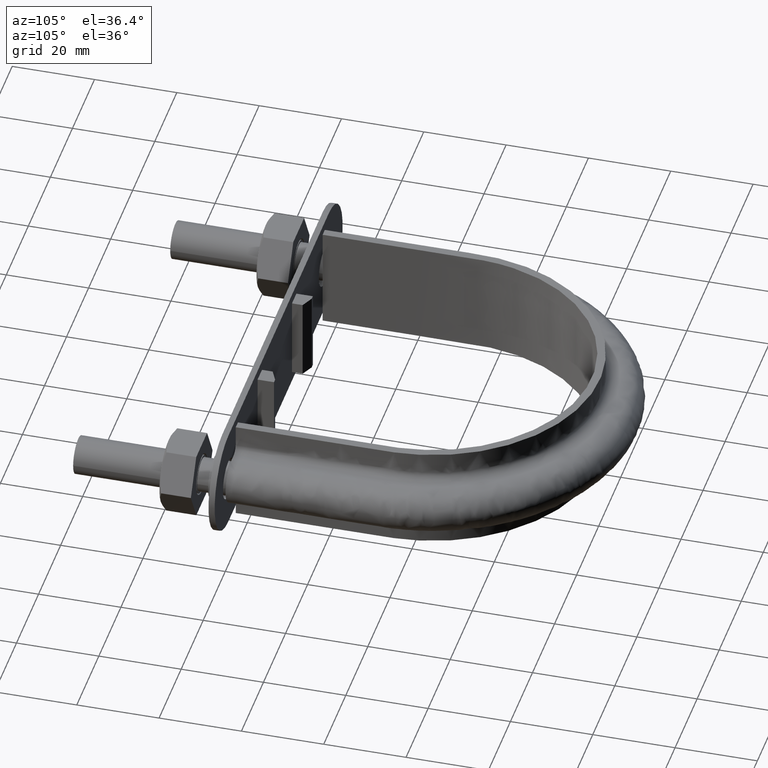
[diagram: clean part render]
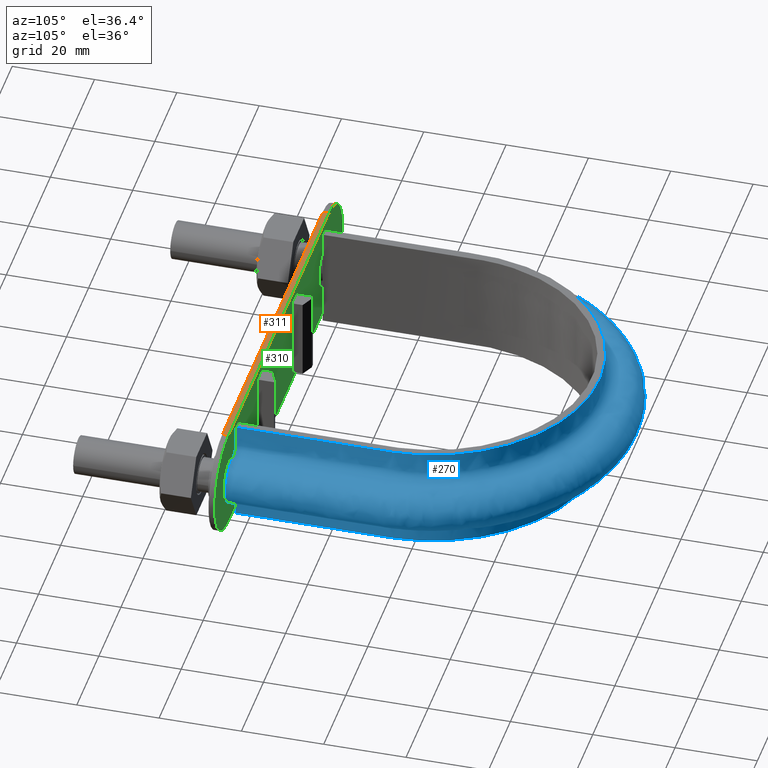
[diagram: same view with three faces highlighted in distinct colors, each labeled with its STEP entity id]
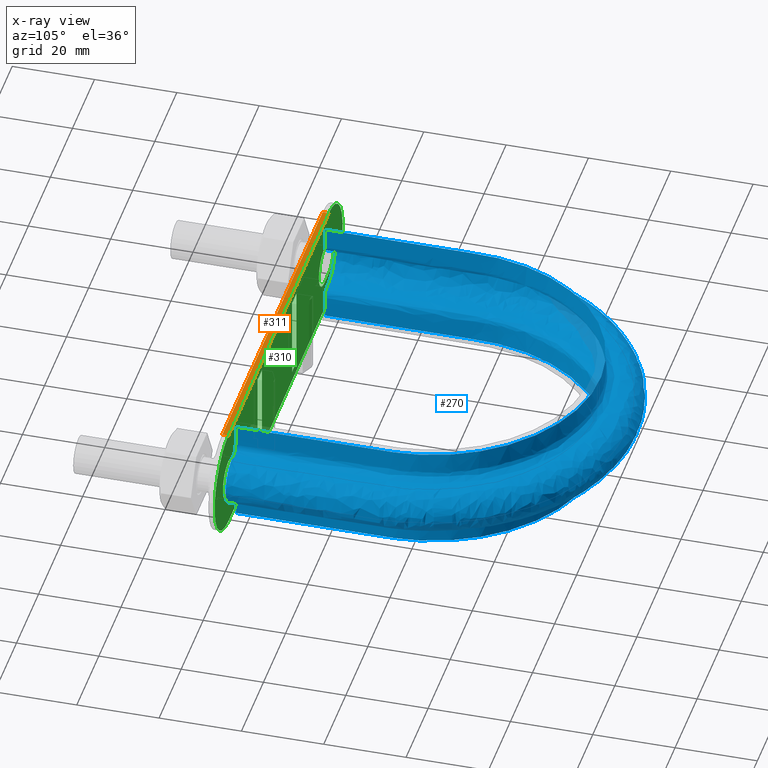
[diagram: x-ray of the same camera — body ghosted, the three highlighted faces saturated]
A machine part, auxiliary view with three faces highlighted in distinct colors.
The next image is the same camera in x-ray (body ghosted, the three faces saturated) — at least one of them is partly hidden behind the body in this view.
Their STEP definitions:

[orange] entity #311 — the highlighted planar face has unit normal (0, 0, 1).
#311 = ADVANCED_FACE( '', ( #485 ), #486, .T. );
#485 = FACE_OUTER_BOUND( '', #1563, .T. );
#486 = PLANE( '', #1564 );
#1563 = EDGE_LOOP( '', ( #2026, #2027, #2028, #2029 ) );
#1564 = AXIS2_PLACEMENT_3D( '', #2030, #2031, #2032 );
#2026 = ORIENTED_EDGE( '', *, *, #2607, .F. );
#2027 = ORIENTED_EDGE( '', *, *, #2619, .F. );
#2028 = ORIENTED_EDGE( '', *, *, #2568, .T. );
#2029 = ORIENTED_EDGE( '', *, *, #2620, .T. );
#2030 = CARTESIAN_POINT( '', ( -46.9999999999969, 35.0000000000000, 12.5000000000116 ) );
#2031 = DIRECTION( '', ( 3.67552146255582E-028, 1.48458090485618E-015, 1.00000000000000 ) );
#2032 = DIRECTION( '', ( 1.00000000000000, -2.47579734491594E-013, 0.000000000000000 ) );
#2568 = EDGE_CURVE( '', #2830, #2834, #2836, .F. );
#2607 = EDGE_CURVE( '', #2900, #2902, #2903, .T. );
#2619 = EDGE_CURVE( '', #2830, #2900, #2925, .T. );
#2620 = EDGE_CURVE( '', #2834, #2902, #2926, .T. );
#2830 = VERTEX_POINT( '', #3477 );
#2834 = VERTEX_POINT( '', #3482 );
#2836 = LINE( '', #3484, #3485 );
#2900 = VERTEX_POINT( '', #3581 );
#2902 = VERTEX_POINT( '', #3583 );
#2903 = LINE( '', #3584, #3585 );
#2925 = LINE( '', #3616, #3617 );
#2926 = LINE( '', #3618, #3619 );
#3477 = CARTESIAN_POINT( '', ( -46.9999999999985, 35.0000000000000, 12.5000000000116 ) );
#3482 = CARTESIAN_POINT( '', ( 44.0000000000015, 35.0000000000000, 12.5000000000004 ) );
#3484 = CARTESIAN_POINT( '', ( -46.9999999999969, 35.0000000000000, 12.5000000000116 ) );
#3485 = VECTOR( '', #4085, 1000.00000000000 );
#3581 = CARTESIAN_POINT( '', ( -46.9999999999985, 36.5000000000000, 12.5000000000116 ) );
#3583 = CARTESIAN_POINT( '', ( 44.0000000000015, 36.5000000000000, 12.5000000000003 ) );
#3584 = CARTESIAN_POINT( '', ( -47.0000000000000, 36.5000000000000, 12.5000000000116 ) );
#3585 = VECTOR( '', #4136, 1000.00000000000 );
#3616 = CARTESIAN_POINT( '', ( -46.9999999999969, 35.0000000000000, 12.5000000000116 ) );
#3617 = VECTOR( '', #4152, 1000.00000000000 );
#3618 = CARTESIAN_POINT( '', ( 44.0000000000031, 35.0000000000000, 12.4999999999891 ) );
#3619 = VECTOR( '', #4153, 1000.00000000000 );
#4085 = DIRECTION( '', ( -1.00000000000000, 7.10926701394044E-032, 3.67552146255582E-028 ) );
#4136 = DIRECTION( '', ( 1.00000000000000, -7.10926701394044E-032, -3.67552146255582E-028 ) );
#4152 = DIRECTION( '', ( -4.78873666697753E-017, 1.00000000000000, -1.48458090479487E-015 ) );
#4153 = DIRECTION( '', ( -4.78873666697753E-017, 1.00000000000000, -1.48458090479487E-015 ) );

[blue] entity #270 — the highlighted face is a freeform B-spline surface patch.
#270 = ADVANCED_FACE( '', ( #387 ), #388, .F. );
#387 = FACE_OUTER_BOUND( '', #640, .T. );
#388 = B_SPLINE_SURFACE_WITH_KNOTS( '', 3, 3, ( ( #641, #642, #643, #644, #645, #646, #647, #648, #649, #650, #651, #652, #653, #654, #655, #656, #657 ), ( #658, #659, #660, #661, #662, #663, #664, #665, #666, #667, #668, #669, #670, #671, #672, #673, #674 ), ( #675, #676, #677, #678, #679, #680, #681, #682, #683, #684, #685, #686, #687, #688, #689, #690, #691 ), ( #692, #693, #694, #695, #696, #697, #698, #699, #700, #701, #702, #703, #704, #705, #706, #707, #708 ), ( #709, #710, #711, #712, #713, #714, #715, #716, #717, #718, #719, #720, #721, #722, #723, #724, #725 ), ( #726, #727, #728, #729, #730, #731, #732, #733, #734, #735, #736, #737, #738, #739, #740, #741, #742 ), ( #743, #744, #745, #746, #747, #748, #749, #750, #751, #752, #753, #754, #755, #756, #757, #758, #759 ), ( #760, #761, #762, #763, #764, #765, #766, #767, #768, #769, #770, #771, #772, #773, #774, #775, #776 ), ( #777, #778, #779, #780, #781, #782, #783, #784, #785, #786, #787, #788, #789, #790, #791, #792, #793 ), ( #794, #795, #796, #797, #798, #799, #800, #801, #802, #803, #804, #805, #806, #807, #808, #809, #810 ), ( #811, #812, #813, #814, #815, #816, #817, #818, #819, #820, #821, #822, #823, #824, #825, #826, #827 ), ( #828, #829, #830, #831, #832, #833, #834, #835, #836, #837, #838, #839, #840, #841, #842, #843, #844 ), ( #845, #846, #847, #848, #849, #850, #851, #852, #853, #854, #855, #856, #857, #858, #859, #860, #861 ), ( #862, #863, #864, #865, #866, #867, #868, #869, #870, #871, #872, #873, #874, #875, #876, #877, #878 ), ( #879, #880, #881, #882, #883, #884, #885, #886, #887, #888, #889, #890, #891, #892, #893, #894, #895 ), ( #896, #897, #898, #899, #900, #901, #902, #903, #904, #905, #906, #907, #908, #909, #910, #911, #912 ), ( #913, #914, #915, #916, #917, #918, #919, #920, #921, #922, #923, #924, #925, #926, #927, #928, #929 ), ( #930, #931, #932, #933, #934, #935, #936, #937, #938, #939, #940, #941, #942, #943, #944, #945, #946 ), ( #947, #948, #949, #950, #951, #952, #953, #954, #955, #956, #957, #958, #959, #960, #961, #962, #963 ), ( #964, #965, #966, #967, #968, #969, #970, #971, #972, #973, #974, #975, #976, #977, #978, #979, #980 ), ( #981, #982, #983, #984, #985, #986, #987, #988, #989, #990, #991, #992, #993, #994, #995, #996, #997 ), ( #998, #999, #1000, #1001, #1002, #1003, #1004, #1005, #1006, #1007, #1008, #1009, #1010, #1011, #1012, #1013, #1014 ), ( #1015, #1016, #1017, #1018, #1019, #1020, #1021, #1022, #1023, #1024, #1025, #1026, #1027, #1028, #1029, #1030, #1031 ), ( #1032, #1033, #1034, #1035, #1036, #1037, #1038, #1039, #1040, #1041, #1042, #1043, #1044, #1045, #1046, #1047, #1048 ), ( #1049, #1050, #1051, #1052, #1053, #1054, #1055, #1056, #1057, #1058, #1059, #1060, #1061, #1062, #1063, #1064, #1065 ), ( #1066, #1067, #1068, #1069, #1070, #1071, #1072, #1073, #1074, #1075, #1076, #1077, #1078, #1079, #1080, #1081, #1082 ), ( #1083, #1084, #1085, #1086, #1087, #1088, #1089, #1090, #1091, #1092, #1093, #1094, #1095, #1096, #1097, #1098, #1099 ), ( #1100, #1101, #1102, #1103, #1104, #1105, #1106, #1107, #1108, #1109, #1110, #1111, #1112, #1113, #1114, #1115, #1116 ), ( #1117, #1118, #1119, #1120, #1121, #1122, #1123, #1124, #1125, #1126, #1127, #1128, #1129, #1130, #1131, #1132, #1133 ), ( #1134, #1135, #1136, #1137, #1138, #1139, #1140, #1141, #1142, #1143, #1144, #1145, #1146, #1147, #1148, #1149, #1150 ), ( #1151, #1152, #1153, #1154, #1155, #1156, #1157, #1158, #1159, #1160, #1161, #1162, #1163, #1164, #1165, #1166, #1167 ) ), .UNSPECIFIED., .F., .F., .F., ( 4, 3, 1, 1, 1, 3, 3, 1, 1, 1, 3, 3, 1, 1, 1, 3, 4 ), ( 4, 3, 1, 1, 1, 1, 1, 1, 1, 3, 4 ), ( 0.105263157894737, 0.157894736842105, 0.210526315789474, 0.263157894736842, 0.315789473684211, 0.368421052631579, 0.421052631578947, 0.473684210526316, 0.526315789473684, 0.578947368421053, 0.631578947368421, 0.684210526315789, 0.736842105263158, 0.789473684210526, 0.842105263157895, 0.894736842105263, 0.947368421052632 ), ( 0.000000000000000, 1.00000000000000, 1.50000000000000, 2.00000000000000, 3.00000000000000, 4.00000000000000, 5.00000000000000, 6.00000000000000, 6.50000000000000, 7.00000000000000, 8.00000000000000 ), .UNSPECIFIED. );
#640 = EDGE_LOOP( '', ( #1733, #1734, #1735, #1736 ) );
#641 = CARTESIAN_POINT( '', ( -40.4000000000000, 34.5000000000000, 12.5000000000000 ) );
#642 = CARTESIAN_POINT( '', ( -40.4000000000000, 47.8666666666667, 12.5000000000000 ) );
#643 = CARTESIAN_POINT( '', ( -40.4000000000000, 61.2333333333333, 12.5000000000000 ) );
#644 = CARTESIAN_POINT( '', ( -40.4000000000000, 74.6000000000000, 12.5000000000000 ) );
#645 = CARTESIAN_POINT( '', ( -40.4000000000000, 78.1165288331969, 12.5000000000000 ) );
#646 = CARTESIAN_POINT( '', ( -39.4544182095027, 85.1751790194886, 12.5000000000000 ) );
#647 = CARTESIAN_POINT( '', ( -34.0439198137652, 98.3222802912663, 12.5000000000000 ) );
#648 = CARTESIAN_POINT( '', ( -21.1440253219688, 111.223582281160, 12.5000000000000 ) );
#649 = CARTESIAN_POINT( '', ( 2.90593538714191E-014, 116.888208859420, 12.5000000000000 ) );
#650 = CARTESIAN_POINT( '', ( 21.1440253219689, 111.223582281160, 12.5000000000000 ) );
#651 = CARTESIAN_POINT( '', ( 34.0439198137653, 98.3222802912663, 12.5000000000000 ) );
#652 = CARTESIAN_POINT( '', ( 39.4544182095027, 85.1751790194886, 12.5000000000000 ) );
#653 = CARTESIAN_POINT( '', ( 40.4000000000000, 78.1165288331969, 12.5000000000000 ) );
#654 = CARTESIAN_POINT( '', ( 40.4000000000000, 74.6000000000000, 12.5000000000000 ) );
#655 = CARTESIAN_POINT( '', ( 40.4000000000000, 61.2333333333333, 12.5000000000000 ) );
#656 = CARTESIAN_POINT( '', ( 40.4000000000000, 47.8666666666666, 12.5000000000000 ) );
#657 = CARTESIAN_POINT( '', ( 40.4000000000000, 34.5000000000000, 12.5000000000000 ) );
#658 = CARTESIAN_POINT( '', ( -40.4000000000000, 34.5000000000000, 10.8666666666667 ) );
#659 = CARTESIAN_POINT( '', ( -40.4000000000000, 47.8666666666667, 10.8666666666667 ) );
#660 = CARTESIAN_POINT( '', ( -40.4000000000000, 61.2333333333334, 10.8666666666667 ) );
#661 = CARTESIAN_POINT( '', ( -40.4000000000000, 74.6000000000000, 10.8666666666667 ) );
#662 = CARTESIAN_POINT( '', ( -40.4000000000000, 78.1165288331969, 10.8666666666667 ) );
#663 = CARTESIAN_POINT( '', ( -39.4544182095027, 85.1751790194886, 10.8666666666666 ) );
#664 = CARTESIAN_POINT( '', ( -34.0439198137652, 98.3222802912663, 10.8666666666667 ) );
#665 = CARTESIAN_POINT( '', ( -21.1440253219688, 111.223582281160, 10.8666666666667 ) );
#666 = CARTESIAN_POINT( '', ( 2.90593538714191E-014, 116.888208859420, 10.8666666666667 ) );
#667 = CARTESIAN_POINT( '', ( 21.1440253219689, 111.223582281160, 10.8666666666667 ) );
#668 = CARTESIAN_POINT( '', ( 34.0439198137653, 98.3222802912663, 10.8666666666667 ) );
#669 = CARTESIAN_POINT( '', ( 39.4544182095027, 85.1751790194886, 10.8666666666666 ) );
#670 = CARTESIAN_POINT( '', ( 40.4000000000000, 78.1165288331968, 10.8666666666667 ) );
#671 = CARTESIAN_POINT( '', ( 40.4000000000000, 74.6000000000000, 10.8666666666667 ) );
#672 = CARTESIAN_POINT( '', ( 40.4000000000000, 61.2333333333333, 10.8666666666667 ) );
#673 = CARTESIAN_POINT( '', ( 40.4000000000000, 47.8666666666666, 10.8666666666667 ) );
#674 = CARTESIAN_POINT( '', ( 40.4000000000000, 34.5000000000000, 10.8666666666667 ) );
#675 = CARTESIAN_POINT( '', ( -40.4000000000000, 34.5000000000000, 9.23333333333332 ) );
#676 = CARTESIAN_POINT( '', ( -40.4000000000000, 47.8666666666667, 9.23333333333332 ) );
#677 = CARTESIAN_POINT( '', ( -40.4000000000000, 61.2333333333334, 9.23333333333332 ) );
#678 = CARTESIAN_POINT( '', ( -40.4000000000000, 74.6000000000000, 9.23333333333332 ) );
#679 = CARTESIAN_POINT( '', ( -40.4000000000000, 78.1165288331969, 9.23333333333332 ) );
#680 = CARTESIAN_POINT( '', ( -39.4544182095027, 85.1751790194886, 9.23333333333331 ) );
#681 = CARTESIAN_POINT( '', ( -34.0439198137652, 98.3222802912663, 9.23333333333333 ) );
#682 = CARTESIAN_POINT( '', ( -21.1440253219688, 111.223582281160, 9.23333333333332 ) );
#683 = CARTESIAN_POINT( '', ( 2.90593538714191E-014, 116.888208859420, 9.23333333333332 ) );
#684 = CARTESIAN_POINT( '', ( 21.1440253219689, 111.223582281160, 9.23333333333332 ) );
#685 = CARTESIAN_POINT( '', ( 34.0439198137653, 98.3222802912663, 9.23333333333332 ) );
#686 = CARTESIAN_POINT( '', ( 39.4544182095027, 85.1751790194886, 9.23333333333331 ) );
#687 = CARTESIAN_POINT( '', ( 40.4000000000000, 78.1165288331968, 9.23333333333332 ) );
#688 = CARTESIAN_POINT( '', ( 40.4000000000000, 74.6000000000000, 9.23333333333332 ) );
#689 = CARTESIAN_POINT( '', ( 40.4000000000000, 61.2333333333333, 9.23333333333332 ) );
#690 = CARTESIAN_POINT( '', ( 40.4000000000000, 47.8666666666666, 9.23333333333332 ) );
#691 = CARTESIAN_POINT( '', ( 40.4000000000000, 34.5000000000000, 9.23333333333332 ) );
#692 = CARTESIAN_POINT( '', ( -40.4000000000000, 34.5000000000000, 7.59999999999998 ) );
#693 = CARTESIAN_POINT( '', ( -40.4000000000000, 47.8666666666667, 7.59999999999998 ) );
#694 = CARTESIAN_POINT( '', ( -40.4000000000000, 61.2333333333334, 7.59999999999998 ) );
#695 = CARTESIAN_POINT( '', ( -40.4000000000000, 74.6000000000000, 7.59999999999998 ) );
#696 = CARTESIAN_POINT( '', ( -40.4000000000000, 78.1165288331969, 7.59999999999998 ) );
#697 = CARTESIAN_POINT( '', ( -39.4544182095027, 85.1751790194886, 7.59999999999997 ) );
#698 = CARTESIAN_POINT( '', ( -34.0439198137652, 98.3222802912663, 7.59999999999999 ) );
#699 = CARTESIAN_POINT( '', ( -21.1440253219688, 111.223582281160, 7.59999999999998 ) );
#700 = CARTESIAN_POINT( '', ( 3.07940773473959E-014, 116.888208859420, 7.59999999999998 ) );
#701 = CARTESIAN_POINT( '', ( 21.1440253219689, 111.223582281160, 7.59999999999998 ) );
#702 = CARTESIAN_POINT( '', ( 34.0439198137653, 98.3222802912663, 7.59999999999999 ) );
#703 = CARTESIAN_POINT( '', ( 39.4544182095027, 85.1751790194886, 7.59999999999997 ) );
#704 = CARTESIAN_POINT( '', ( 40.4000000000000, 78.1165288331968, 7.59999999999998 ) );
#705 = CARTESIAN_POINT( '', ( 40.4000000000000, 74.6000000000000, 7.59999999999998 ) );
#706 = CARTESIAN_POINT( '', ( 40.4000000000000, 61.2333333333333, 7.59999999999998 ) );
#707 = CARTESIAN_POINT( '', ( 40.4000000000000, 47.8666666666666, 7.59999999999998 ) );
#708 = CARTESIAN_POINT( '', ( 40.4000000000000, 34.5000000000000, 7.59999999999998 ) );
#709 = CARTESIAN_POINT( '', ( -40.4000000000000, 34.5000000000000, 7.33823584172332 ) );
#710 = CARTESIAN_POINT( '', ( -40.4000000000000, 47.8666666666667, 7.33823584172332 ) );
#711 = CARTESIAN_POINT( '', ( -40.4000000000000, 61.2333333333334, 7.33823584172332 ) );
#712 = CARTESIAN_POINT( '', ( -40.4000000000000, 74.6000000000000, 7.33823584172332 ) );
#713 = CARTESIAN_POINT( '', ( -40.4000000000000, 78.1165288331969, 7.33823584172332 ) );
#714 = CARTESIAN_POINT( '', ( -39.4544182095027, 85.1751790194886, 7.33823584172331 ) );
#715 = CARTESIAN_POINT( '', ( -34.0439198137652, 98.3222802912663, 7.33823584172332 ) );
#716 = CARTESIAN_POINT( '', ( -21.1440253219688, 111.223582281160, 7.33823584172331 ) );
#717 = CARTESIAN_POINT( '', ( 2.90593538714191E-014, 116.888208859420, 7.33823584172331 ) );
#718 = CARTESIAN_POINT( '', ( 21.1440253219689, 111.223582281160, 7.33823584172331 ) );
#719 = CARTESIAN_POINT( '', ( 34.0439198137653, 98.3222802912663, 7.33823584172332 ) );
#720 = CARTESIAN_POINT( '', ( 39.4544182095027, 85.1751790194886, 7.33823584172331 ) );
#721 = CARTESIAN_POINT( '', ( 40.4000000000000, 78.1165288331969, 7.33823584172332 ) );
#722 = CARTESIAN_POINT( '', ( 40.4000000000000, 74.6000000000000, 7.33823584172332 ) );
#723 = CARTESIAN_POINT( '', ( 40.4000000000000, 61.2333333333333, 7.33823584172332 ) );
#724 = CARTESIAN_POINT( '', ( 40.4000000000000, 47.8666666666666, 7.33823584172332 ) );
#725 = CARTESIAN_POINT( '', ( 40.4000000000000, 34.5000000000000, 7.33823584172332 ) );
#726 = CARTESIAN_POINT( '', ( -40.5041362568359, 34.5000000000000, 6.81470752516999 ) );
#727 = CARTESIAN_POINT( '', ( -40.5041362568359, 47.8666666666667, 6.81470752516999 ) );
#728 = CARTESIAN_POINT( '', ( -40.5041362568359, 61.2333333333334, 6.81470752516999 ) );
#729 = CARTESIAN_POINT( '', ( -40.5041362568359, 74.6000000000000, 6.81470752516999 ) );
#730 = CARTESIAN_POINT( '', ( -40.5041362568359, 78.1258299085042, 6.81470752516999 ) );
#731 = CARTESIAN_POINT( '', ( -39.5561585978603, 85.2023419372925, 6.81470752516998 ) );
#732 = CARTESIAN_POINT( '', ( -34.1316485577521, 98.3834831240708, 6.81470752516999 ) );
#733 = CARTESIAN_POINT( '', ( -21.1985343424224, 111.317964123169, 6.81470752516999 ) );
#734 = CARTESIAN_POINT( '', ( 2.99400654675047E-014, 116.997222323669, 6.81470752516999 ) );
#735 = CARTESIAN_POINT( '', ( 21.1985343424224, 111.317964123169, 6.81470752516999 ) );
#736 = CARTESIAN_POINT( '', ( 34.1316485577522, 98.3834831240708, 6.81470752516999 ) );
#737 = CARTESIAN_POINT( '', ( 39.5561585978604, 85.2023419372925, 6.81470752516998 ) );
#738 = CARTESIAN_POINT( '', ( 40.5041362568359, 78.1258299085042, 6.81470752516999 ) );
#739 = CARTESIAN_POINT( '', ( 40.5041362568359, 74.6000000000000, 6.81470752516999 ) );
#740 = CARTESIAN_POINT( '', ( 40.5041362568359, 61.2333333333333, 6.81470752516999 ) );
#741 = CARTESIAN_POINT( '', ( 40.5041362568359, 47.8666666666666, 6.81470752516999 ) );
#742 = CARTESIAN_POINT( '', ( 40.5041362568359, 34.5000000000000, 6.81470752516999 ) );
#743 = CARTESIAN_POINT( '', ( -40.9489687109389, 34.5000000000000, 6.14896871093886 ) );
#744 = CARTESIAN_POINT( '', ( -40.9489687109389, 47.8666666666667, 6.14896871093886 ) );
#745 = CARTESIAN_POINT( '', ( -40.9489687109389, 61.2333333333334, 6.14896871093886 ) );
#746 = CARTESIAN_POINT( '', ( -40.9489687109389, 74.6000000000000, 6.14896871093886 ) );
#747 = CARTESIAN_POINT( '', ( -40.9489687109389, 78.1655607407855, 6.14896871093886 ) );
#748 = CARTESIAN_POINT( '', ( -39.9907567676970, 85.3183721054052, 6.14896871093885 ) );
#749 = CARTESIAN_POINT( '', ( -34.5063940466797, 98.6449195069571, 6.14896871093886 ) );
#750 = CARTESIAN_POINT( '', ( -21.4313771781055, 111.721129242402, 6.14896871093885 ) );
#751 = CARTESIAN_POINT( '', ( 2.91297294986359E-014, 117.462888445207, 6.14896871093886 ) );
#752 = CARTESIAN_POINT( '', ( 21.4313771781055, 111.721129242402, 6.14896871093885 ) );
#753 = CARTESIAN_POINT( '', ( 34.5063940466797, 98.6449195069571, 6.14896871093886 ) );
#754 = CARTESIAN_POINT( '', ( 39.9907567676970, 85.3183721054051, 6.14896871093885 ) );
#755 = CARTESIAN_POINT( '', ( 40.9489687109389, 78.1655607407855, 6.14896871093886 ) );
#756 = CARTESIAN_POINT( '', ( 40.9489687109389, 74.6000000000000, 6.14896871093886 ) );
#757 = CARTESIAN_POINT( '', ( 40.9489687109389, 61.2333333333333, 6.14896871093886 ) );
#758 = CARTESIAN_POINT( '', ( 40.9489687109389, 47.8666666666666, 6.14896871093886 ) );
#759 = CARTESIAN_POINT( '', ( 40.9489687109389, 34.5000000000000, 6.14896871093886 ) );
#760 = CARTESIAN_POINT( '', ( -41.6147075251700, 34.5000000000000, 5.70413625683589 ) );
#761 = CARTESIAN_POINT( '', ( -41.6147075251700, 47.8666666666667, 5.70413625683589 ) );
#762 = CARTESIAN_POINT( '', ( -41.6147075251700, 61.2333333333334, 5.70413625683589 ) );
#763 = CARTESIAN_POINT( '', ( -41.6147075251700, 74.6000000000000, 5.70413625683589 ) );
#764 = CARTESIAN_POINT( '', ( -41.6147075251700, 78.2250221333333, 5.70413625683589 ) );
#765 = CARTESIAN_POINT( '', ( -40.6411788931184, 85.4920235236456, 5.70413625683588 ) );
#766 = CARTESIAN_POINT( '', ( -35.0672403049415, 99.0361867041550, 5.70413625683589 ) );
#767 = CARTESIAN_POINT( '', ( -21.7798511077842, 112.324508483151, 5.70413625683588 ) );
#768 = CARTESIAN_POINT( '', ( 2.83477128553322E-014, 118.159807046179, 5.70413625683589 ) );
#769 = CARTESIAN_POINT( '', ( 21.7798511077843, 112.324508483151, 5.70413625683588 ) );
#770 = CARTESIAN_POINT( '', ( 35.0672403049415, 99.0361867041550, 5.70413625683589 ) );
#771 = CARTESIAN_POINT( '', ( 40.6411788931185, 85.4920235236456, 5.70413625683588 ) );
#772 = CARTESIAN_POINT( '', ( 41.6147075251700, 78.2250221333333, 5.70413625683589 ) );
#773 = CARTESIAN_POINT( '', ( 41.6147075251700, 74.6000000000000, 5.70413625683589 ) );
#774 = CARTESIAN_POINT( '', ( 41.6147075251700, 61.2333333333333, 5.70413625683589 ) );
#775 = CARTESIAN_POINT( '', ( 41.6147075251700, 47.8666666666666, 5.70413625683589 ) );
#776 = CARTESIAN_POINT( '', ( 41.6147075251700, 34.5000000000000, 5.70413625683589 ) );
#777 = CARTESIAN_POINT( '', ( -42.1382358417233, 34.5000000000000, 5.59999999999998 ) );
#778 = CARTESIAN_POINT( '', ( -42.1382358417233, 47.8666666666667, 5.59999999999998 ) );
#779 = CARTESIAN_POINT( '', ( -42.1382358417233, 61.2333333333334, 5.59999999999998 ) );
#780 = CARTESIAN_POINT( '', ( -42.1382358417233, 74.6000000000000, 5.59999999999998 ) );
#781 = CARTESIAN_POINT( '', ( -42.1382358417233, 78.2717817965451, 5.59999999999998 ) );
#782 = CARTESIAN_POINT( '', ( -41.1526623654531, 85.6285807330424, 5.59999999999997 ) );
#783 = CARTESIAN_POINT( '', ( -35.5082824841813, 99.3438741225433, 5.59999999999998 ) );
#784 = CARTESIAN_POINT( '', ( -22.0538864589874, 112.798998044823, 5.59999999999998 ) );
#785 = CARTESIAN_POINT( '', ( 2.84148271241585E-014, 118.707854740173, 5.59999999999998 ) );
#786 = CARTESIAN_POINT( '', ( 22.0538864589875, 112.798998044823, 5.59999999999997 ) );
#787 = CARTESIAN_POINT( '', ( 35.5082824841814, 99.3438741225433, 5.59999999999998 ) );
#788 = CARTESIAN_POINT( '', ( 41.1526623654532, 85.6285807330424, 5.59999999999997 ) );
#789 = CARTESIAN_POINT( '', ( 42.1382358417234, 78.2717817965451, 5.59999999999998 ) );
#790 = CARTESIAN_POINT( '', ( 42.1382358417234, 74.6000000000000, 5.59999999999998 ) );
#791 = CARTESIAN_POINT( '', ( 42.1382358417233, 61.2333333333333, 5.59999999999998 ) );
#792 = CARTESIAN_POINT( '', ( 42.1382358417233, 47.8666666666666, 5.59999999999998 ) );
#793 = CARTESIAN_POINT( '', ( 42.1382358417233, 34.5000000000000, 5.59999999999998 ) );
#794 = CARTESIAN_POINT( '', ( -42.4000000000000, 34.5000000000000, 5.59999999999998 ) );
#795 = CARTESIAN_POINT( '', ( -42.4000000000000, 47.8666666666667, 5.59999999999998 ) );
#796 = CARTESIAN_POINT( '', ( -42.4000000000000, 61.2333333333334, 5.59999999999998 ) );
#797 = CARTESIAN_POINT( '', ( -42.4000000000000, 74.6000000000000, 5.59999999999998 ) );
#798 = CARTESIAN_POINT( '', ( -42.4000000000000, 78.2951616281509, 5.59999999999998 ) );
#799 = CARTESIAN_POINT( '', ( -41.4084041016205, 85.6968593377408, 5.59999999999997 ) );
#800 = CARTESIAN_POINT( '', ( -35.7288035738012, 99.4977178317373, 5.59999999999998 ) );
#801 = CARTESIAN_POINT( '', ( -22.1909041345891, 113.036242825660, 5.59999999999998 ) );
#802 = CARTESIAN_POINT( '', ( 2.84483842585716E-014, 118.981878587170, 5.59999999999998 ) );
#803 = CARTESIAN_POINT( '', ( 22.1909041345891, 113.036242825660, 5.59999999999997 ) );
#804 = CARTESIAN_POINT( '', ( 35.7288035738013, 99.4977178317374, 5.59999999999998 ) );
#805 = CARTESIAN_POINT( '', ( 41.4084041016205, 85.6968593377408, 5.59999999999997 ) );
#806 = CARTESIAN_POINT( '', ( 42.4000000000000, 78.2951616281509, 5.59999999999998 ) );
#807 = CARTESIAN_POINT( '', ( 42.4000000000000, 74.6000000000000, 5.59999999999998 ) );
#808 = CARTESIAN_POINT( '', ( 42.4000000000000, 61.2333333333333, 5.59999999999998 ) );
#809 = CARTESIAN_POINT( '', ( 42.4000000000000, 47.8666666666666, 5.59999999999998 ) );
#810 = CARTESIAN_POINT( '', ( 42.4000000000000, 34.5000000000000, 5.59999999999998 ) );
#811 = CARTESIAN_POINT( '', ( -42.9333333333333, 34.5000000000000, 5.60000000000000 ) );
#812 = CARTESIAN_POINT( '', ( -42.9333333333333, 47.8666666666667, 5.60000000000000 ) );
#813 = CARTESIAN_POINT( '', ( -42.9333333333333, 61.2333333333334, 5.60000000000000 ) );
#814 = CARTESIAN_POINT( '', ( -42.9333333333333, 74.6000000000000, 5.60000000000000 ) );
#815 = CARTESIAN_POINT( '', ( -42.9333333333333, 78.3427970401387, 5.60000000000000 ) );
#816 = CARTESIAN_POINT( '', ( -41.9294670061852, 85.8359740892748, 5.59999999999999 ) );
#817 = CARTESIAN_POINT( '', ( -36.1781059098108, 99.8111678425296, 5.60000000000001 ) );
#818 = CARTESIAN_POINT( '', ( -22.4700718179544, 113.519618970859, 5.60000000000000 ) );
#819 = CARTESIAN_POINT( '', ( 3.02514789679193E-014, 119.540190514570, 5.60000000000000 ) );
#820 = CARTESIAN_POINT( '', ( 22.4700718179545, 113.519618970859, 5.60000000000000 ) );
#821 = CARTESIAN_POINT( '', ( 36.1781059098109, 99.8111678425296, 5.60000000000000 ) );
#822 = CARTESIAN_POINT( '', ( 41.9294670061853, 85.8359740892747, 5.60000000000000 ) );
#823 = CARTESIAN_POINT( '', ( 42.9333333333334, 78.3427970401387, 5.60000000000000 ) );
#824 = CARTESIAN_POINT( '', ( 42.9333333333334, 74.6000000000000, 5.60000000000000 ) );
#825 = CARTESIAN_POINT( '', ( 42.9333333333333, 61.2333333333333, 5.60000000000000 ) );
#826 = CARTESIAN_POINT( '', ( 42.9333333333333, 47.8666666666666, 5.60000000000000 ) );
#827 = CARTESIAN_POINT( '', ( 42.9333333333333, 34.5000000000000, 5.60000000000000 ) );
#828 = CARTESIAN_POINT( '', ( -43.4666666666666, 34.5000000000000, 5.60000000000000 ) );
#829 = CARTESIAN_POINT( '', ( -43.4666666666666, 47.8666666666667, 5.60000000000000 ) );
#830 = CARTESIAN_POINT( '', ( -43.4666666666666, 61.2333333333334, 5.60000000000000 ) );
#831 = CARTESIAN_POINT( '', ( -43.4666666666666, 74.6000000000000, 5.60000000000000 ) );
#832 = CARTESIAN_POINT( '', ( -43.4666666666667, 78.3904324521265, 5.60000000000000 ) );
#833 = CARTESIAN_POINT( '', ( -42.4505299107500, 85.9750888408087, 5.59999999999999 ) );
#834 = CARTESIAN_POINT( '', ( -36.6274082458204, 100.124617853322, 5.60000000000001 ) );
#835 = CARTESIAN_POINT( '', ( -22.7492395013198, 114.002995116059, 5.60000000000000 ) );
#836 = CARTESIAN_POINT( '', ( 2.68504032493366E-014, 120.098502441970, 5.60000000000000 ) );
#837 = CARTESIAN_POINT( '', ( 22.7492395013199, 114.002995116059, 5.60000000000000 ) );
#838 = CARTESIAN_POINT( '', ( 36.6274082458205, 100.124617853322, 5.60000000000000 ) );
#839 = CARTESIAN_POINT( '', ( 42.4505299107500, 85.9750888408087, 5.60000000000000 ) );
#840 = CARTESIAN_POINT( '', ( 43.4666666666667, 78.3904324521264, 5.60000000000000 ) );
#841 = CARTESIAN_POINT( '', ( 43.4666666666667, 74.6000000000000, 5.60000000000000 ) );
#842 = CARTESIAN_POINT( '', ( 43.4666666666667, 61.2333333333333, 5.60000000000000 ) );
#843 = CARTESIAN_POINT( '', ( 43.4666666666667, 47.8666666666666, 5.60000000000000 ) );
#844 = CARTESIAN_POINT( '', ( 43.4666666666667, 34.5000000000000, 5.60000000000000 ) );
#845 = CARTESIAN_POINT( '', ( -44.0000000000000, 34.5000000000000, 5.60000000000000 ) );
#846 = CARTESIAN_POINT( '', ( -44.0000000000000, 47.8666666666667, 5.60000000000000 ) );
#847 = CARTESIAN_POINT( '', ( -44.0000000000000, 61.2333333333334, 5.60000000000000 ) );
#848 = CARTESIAN_POINT( '', ( -44.0000000000000, 74.6000000000000, 5.60000000000000 ) );
#849 = CARTESIAN_POINT( '', ( -44.0000000000000, 78.4380678641142, 5.60000000000000 ) );
#850 = CARTESIAN_POINT( '', ( -42.9715928153147, 86.1142035923426, 5.59999999999999 ) );
#851 = CARTESIAN_POINT( '', ( -37.0767105818300, 100.438067864114, 5.60000000000001 ) );
#852 = CARTESIAN_POINT( '', ( -23.0284071846852, 114.486371261259, 5.60000000000000 ) );
#853 = CARTESIAN_POINT( '', ( 2.86534979586843E-014, 120.656814369370, 5.60000000000000 ) );
#854 = CARTESIAN_POINT( '', ( 23.0284071846853, 114.486371261259, 5.60000000000000 ) );
#855 = CARTESIAN_POINT( '', ( 37.0767105818301, 100.438067864114, 5.60000000000000 ) );
#856 = CARTESIAN_POINT( '', ( 42.9715928153148, 86.1142035923426, 5.60000000000000 ) );
#857 = CARTESIAN_POINT( '', ( 44.0000000000000, 78.4380678641142, 5.60000000000000 ) );
#858 = CARTESIAN_POINT( '', ( 44.0000000000000, 74.6000000000000, 5.60000000000000 ) );
#859 = CARTESIAN_POINT( '', ( 44.0000000000000, 61.2333333333333, 5.60000000000000 ) );
#860 = CARTESIAN_POINT( '', ( 44.0000000000000, 47.8666666666666, 5.60000000000000 ) );
#861 = CARTESIAN_POINT( '', ( 44.0000000000000, 34.5000000000000, 5.60000000000000 ) );
#862 = CARTESIAN_POINT( '', ( -45.4627416997969, 34.5000000000000, 5.60000000000000 ) );
#863 = CARTESIAN_POINT( '', ( -45.4627416997969, 47.8666666666667, 5.60000000000000 ) );
#864 = CARTESIAN_POINT( '', ( -45.4627416997969, 61.2333333333334, 5.60000000000000 ) );
#865 = CARTESIAN_POINT( '', ( -45.4627416997969, 74.6000000000000, 5.60000000000000 ) );
#866 = CARTESIAN_POINT( '', ( -45.4627416997969, 78.5687146831795, 5.60000000000000 ) );
#867 = CARTESIAN_POINT( '', ( -44.4006811379226, 86.4957453700781, 5.60000000000000 ) );
#868 = CARTESIAN_POINT( '', ( -38.3089854493877, 101.297748617091, 5.60000000000001 ) );
#869 = CARTESIAN_POINT( '', ( -23.7940638316120, 115.812098344267, 5.60000000000000 ) );
#870 = CARTESIAN_POINT( '', ( 2.71062922091790E-014, 122.188063377562, 5.60000000000000 ) );
#871 = CARTESIAN_POINT( '', ( 23.7940638316120, 115.812098344267, 5.60000000000000 ) );
#872 = CARTESIAN_POINT( '', ( 38.3089854493877, 101.297748617091, 5.60000000000001 ) );
#873 = CARTESIAN_POINT( '', ( 44.4006811379226, 86.4957453700780, 5.60000000000000 ) );
#874 = CARTESIAN_POINT( '', ( 45.4627416997970, 78.5687146831795, 5.60000000000000 ) );
#875 = CARTESIAN_POINT( '', ( 45.4627416997970, 74.6000000000000, 5.60000000000000 ) );
#876 = CARTESIAN_POINT( '', ( 45.4627416997970, 61.2333333333333, 5.60000000000000 ) );
#877 = CARTESIAN_POINT( '', ( 45.4627416997970, 47.8666666666666, 5.60000000000000 ) );
#878 = CARTESIAN_POINT( '', ( 45.4627416997970, 34.5000000000000, 5.60000000000000 ) );
#879 = CARTESIAN_POINT( '', ( -48.3882250993908, 34.5000000000000, 4.38822509939086 ) );
#880 = CARTESIAN_POINT( '', ( -48.3882250993908, 47.8666666666667, 4.38822509939086 ) );
#881 = CARTESIAN_POINT( '', ( -48.3882250993908, 61.2333333333334, 4.38822509939086 ) );
#882 = CARTESIAN_POINT( '', ( -48.3882250993908, 74.6000000000000, 4.38822509939086 ) );
#883 = CARTESIAN_POINT( '', ( -48.3882250993909, 78.8300083213101, 4.38822509939086 ) );
#884 = CARTESIAN_POINT( '', ( -47.2588577831383, 87.2588289255489, 4.38822509939085 ) );
#885 = CARTESIAN_POINT( '', ( -40.7735351845030, 103.017110123045, 4.38822509939086 ) );
#886 = CARTESIAN_POINT( '', ( -25.3253771254655, 118.463552510283, 4.38822509939086 ) );
#887 = CARTESIAN_POINT( '', ( 2.66139659241337E-014, 125.250561393945, 4.38822509939086 ) );
#888 = CARTESIAN_POINT( '', ( 25.3253771254655, 118.463552510283, 4.38822509939086 ) );
#889 = CARTESIAN_POINT( '', ( 40.7735351845030, 103.017110123045, 4.38822509939086 ) );
#890 = CARTESIAN_POINT( '', ( 47.2588577831383, 87.2588289255489, 4.38822509939086 ) );
#891 = CARTESIAN_POINT( '', ( 48.3882250993909, 78.8300083213101, 4.38822509939086 ) );
#892 = CARTESIAN_POINT( '', ( 48.3882250993909, 74.6000000000000, 4.38822509939086 ) );
#893 = CARTESIAN_POINT( '', ( 48.3882250993909, 61.2333333333333, 4.38822509939086 ) );
#894 = CARTESIAN_POINT( '', ( 48.3882250993909, 47.8666666666666, 4.38822509939086 ) );
#895 = CARTESIAN_POINT( '', ( 48.3882250993909, 34.5000000000000, 4.38822509939086 ) );
#896 = CARTESIAN_POINT( '', ( -50.2058874503046, 34.5000000000000, 2.90303803946411E-015 ) );
#897 = CARTESIAN_POINT( '', ( -50.2058874503046, 47.8666666666667, 2.90303803946411E-015 ) );
#898 = CARTESIAN_POINT( '', ( -50.2058874503046, 61.2333333333334, 2.90303803946411E-015 ) );
#899 = CARTESIAN_POINT( '', ( -50.2058874503046, 74.6000000000000, 2.90303803946411E-015 ) );
#900 = CARTESIAN_POINT( '', ( -50.2058874503046, 78.9923553743234, 2.90303803946411E-015 ) );
#901 = CARTESIAN_POINT( '', ( -49.0347010782978, 87.7329482623988, 2.90303803946411E-015 ) );
#902 = CARTESIAN_POINT( '', ( -42.3048100726446, 104.085384404627, 2.90303803946412E-015 ) );
#903 = CARTESIAN_POINT( '', ( -26.2768132273000, 120.110954923645, 2.90303803946411E-015 ) );
#904 = CARTESIAN_POINT( '', ( 3.20511535085338E-014, 127.153353713635, 2.90303803946411E-015 ) );
#905 = CARTESIAN_POINT( '', ( 26.2768132273000, 120.110954923645, 2.90303803946411E-015 ) );
#906 = CARTESIAN_POINT( '', ( 42.3048100726447, 104.085384404627, 2.90303803946411E-015 ) );
#907 = CARTESIAN_POINT( '', ( 49.0347010782979, 87.7329482623988, 2.90303803946411E-015 ) );
#908 = CARTESIAN_POINT( '', ( 50.2058874503046, 78.9923553743234, 2.90303803946411E-015 ) );
#909 = CARTESIAN_POINT( '', ( 50.2058874503046, 74.6000000000000, 2.90303803946411E-015 ) );
#910 = CARTESIAN_POINT( '', ( 50.2058874503046, 61.2333333333333, 2.90303803946411E-015 ) );
#911 = CARTESIAN_POINT( '', ( 50.2058874503046, 47.8666666666666, 2.90303803946411E-015 ) );
#912 = CARTESIAN_POINT( '', ( 50.2058874503046, 34.5000000000000, 2.90303803946411E-015 ) );
#913 = CARTESIAN_POINT( '', ( -48.3882250993908, 34.5000000000000, -4.38822509939085 ) );
#914 = CARTESIAN_POINT( '', ( -48.3882250993908, 47.8666666666667, -4.38822509939085 ) );
#915 = CARTESIAN_POINT( '', ( -48.3882250993908, 61.2333333333334, -4.38822509939085 ) );
#916 = CARTESIAN_POINT( '', ( -48.3882250993908, 74.6000000000000, -4.38822509939085 ) );
#917 = CARTESIAN_POINT( '', ( -48.3882250993909, 78.8300083213101, -4.38822509939085 ) );
#918 = CARTESIAN_POINT( '', ( -47.2588577831383, 87.2588289255489, -4.38822509939085 ) );
#919 = CARTESIAN_POINT( '', ( -40.7735351845030, 103.017110123045, -4.38822509939086 ) );
#920 = CARTESIAN_POINT( '', ( -25.3253771254655, 118.463552510283, -4.38822509939085 ) );
#921 = CARTESIAN_POINT( '', ( 2.66139659241337E-014, 125.250561393945, -4.38822509939085 ) );
#922 = CARTESIAN_POINT( '', ( 25.3253771254655, 118.463552510283, -4.38822509939085 ) );
#923 = CARTESIAN_POINT( '', ( 40.7735351845031, 103.017110123045, -4.38822509939086 ) );
#924 = CARTESIAN_POINT( '', ( 47.2588577831383, 87.2588289255489, -4.38822509939085 ) );
#925 = CARTESIAN_POINT( '', ( 48.3882250993909, 78.8300083213101, -4.38822509939085 ) );
#926 = CARTESIAN_POINT( '', ( 48.3882250993909, 74.6000000000000, -4.38822509939085 ) );
#927 = CARTESIAN_POINT( '', ( 48.3882250993909, 61.2333333333333, -4.38822509939085 ) );
#928 = CARTESIAN_POINT( '', ( 48.3882250993909, 47.8666666666666, -4.38822509939085 ) );
#929 = CARTESIAN_POINT( '', ( 48.3882250993909, 34.5000000000000, -4.38822509939085 ) );
#930 = CARTESIAN_POINT( '', ( -45.4627416997969, 34.5000000000000, -5.60000000000000 ) );
#931 = CARTESIAN_POINT( '', ( -45.4627416997969, 47.8666666666667, -5.60000000000000 ) );
#932 = CARTESIAN_POINT( '', ( -45.4627416997969, 61.2333333333334, -5.60000000000000 ) );
#933 = CARTESIAN_POINT( '', ( -45.4627416997969, 74.6000000000000, -5.60000000000000 ) );
#934 = CARTESIAN_POINT( '', ( -45.4627416997969, 78.5687146831795, -5.60000000000000 ) );
#935 = CARTESIAN_POINT( '', ( -44.4006811379226, 86.4957453700781, -5.59999999999999 ) );
#936 = CARTESIAN_POINT( '', ( -38.3089854493877, 101.297748617091, -5.60000000000000 ) );
#937 = CARTESIAN_POINT( '', ( -23.7940638316120, 115.812098344267, -5.60000000000000 ) );
#938 = CARTESIAN_POINT( '', ( 2.71062922091790E-014, 122.188063377562, -5.60000000000000 ) );
#939 = CARTESIAN_POINT( '', ( 23.7940638316120, 115.812098344267, -5.60000000000000 ) );
#940 = CARTESIAN_POINT( '', ( 38.3089854493877, 101.297748617091, -5.60000000000000 ) );
#941 = CARTESIAN_POINT( '', ( 44.4006811379226, 86.4957453700780, -5.59999999999999 ) );
#942 = CARTESIAN_POINT( '', ( 45.4627416997970, 78.5687146831795, -5.60000000000000 ) );
#943 = CARTESIAN_POINT( '', ( 45.4627416997970, 74.6000000000000, -5.60000000000000 ) );
#944 = CARTESIAN_POINT( '', ( 45.4627416997970, 61.2333333333333, -5.60000000000000 ) );
#945 = CARTESIAN_POINT( '', ( 45.4627416997970, 47.8666666666666, -5.60000000000000 ) );
#946 = CARTESIAN_POINT( '', ( 45.4627416997970, 34.5000000000000, -5.60000000000000 ) );
#947 = CARTESIAN_POINT( '', ( -44.0000000000000, 34.5000000000000, -5.60000000000000 ) );
#948 = CARTESIAN_POINT( '', ( -44.0000000000000, 47.8666666666667, -5.60000000000000 ) );
#949 = CARTESIAN_POINT( '', ( -44.0000000000000, 61.2333333333334, -5.60000000000000 ) );
#950 = CARTESIAN_POINT( '', ( -44.0000000000000, 74.6000000000000, -5.60000000000000 ) );
#951 = CARTESIAN_POINT( '', ( -44.0000000000000, 78.4380678641142, -5.60000000000000 ) );
#952 = CARTESIAN_POINT( '', ( -42.9715928153147, 86.1142035923426, -5.59999999999999 ) );
#953 = CARTESIAN_POINT( '', ( -37.0767105818300, 100.438067864114, -5.60000000000000 ) );
#954 = CARTESIAN_POINT( '', ( -23.0284071846852, 114.486371261259, -5.60000000000000 ) );
#955 = CARTESIAN_POINT( '', ( 2.69187744827075E-014, 120.656814369370, -5.60000000000000 ) );
#956 = CARTESIAN_POINT( '', ( 23.0284071846853, 114.486371261259, -5.60000000000000 ) );
#957 = CARTESIAN_POINT( '', ( 37.0767105818301, 100.438067864114, -5.60000000000000 ) );
#958 = CARTESIAN_POINT( '', ( 42.9715928153148, 86.1142035923426, -5.59999999999999 ) );
#959 = CARTESIAN_POINT( '', ( 44.0000000000000, 78.4380678641142, -5.60000000000000 ) );
#960 = CARTESIAN_POINT( '', ( 44.0000000000000, 74.6000000000000, -5.60000000000000 ) );
#961 = CARTESIAN_POINT( '', ( 44.0000000000000, 61.2333333333333, -5.60000000000000 ) );
#962 = CARTESIAN_POINT( '', ( 44.0000000000000, 47.8666666666666, -5.60000000000000 ) );
#963 = CARTESIAN_POINT( '', ( 44.0000000000000, 34.5000000000000, -5.60000000000000 ) );
#964 = CARTESIAN_POINT( '', ( -43.4666666666666, 34.5000000000000, -5.60000000000000 ) );
#965 = CARTESIAN_POINT( '', ( -43.4666666666666, 47.8666666666667, -5.60000000000000 ) );
#966 = CARTESIAN_POINT( '', ( -43.4666666666666, 61.2333333333334, -5.60000000000000 ) );
#967 = CARTESIAN_POINT( '', ( -43.4666666666666, 74.6000000000000, -5.60000000000000 ) );
#968 = CARTESIAN_POINT( '', ( -43.4666666666667, 78.3904324521265, -5.60000000000000 ) );
#969 = CARTESIAN_POINT( '', ( -42.4505299107500, 85.9750888408087, -5.59999999999999 ) );
#970 = CARTESIAN_POINT( '', ( -36.6274082458204, 100.124617853322, -5.60000000000000 ) );
#971 = CARTESIAN_POINT( '', ( -22.7492395013198, 114.002995116059, -5.60000000000000 ) );
#972 = CARTESIAN_POINT( '', ( 2.68504032493366E-014, 120.098502441970, -5.60000000000000 ) );
#973 = CARTESIAN_POINT( '', ( 22.7492395013199, 114.002995116059, -5.60000000000000 ) );
#974 = CARTESIAN_POINT( '', ( 36.6274082458205, 100.124617853322, -5.60000000000000 ) );
#975 = CARTESIAN_POINT( '', ( 42.4505299107500, 85.9750888408087, -5.59999999999999 ) );
#976 = CARTESIAN_POINT( '', ( 43.4666666666667, 78.3904324521264, -5.60000000000000 ) );
#977 = CARTESIAN_POINT( '', ( 43.4666666666667, 74.6000000000000, -5.60000000000000 ) );
#978 = CARTESIAN_POINT( '', ( 43.4666666666667, 61.2333333333333, -5.60000000000000 ) );
#979 = CARTESIAN_POINT( '', ( 43.4666666666667, 47.8666666666666, -5.60000000000000 ) );
#980 = CARTESIAN_POINT( '', ( 43.4666666666667, 34.5000000000000, -5.60000000000000 ) );
#981 = CARTESIAN_POINT( '', ( -42.9333333333333, 34.5000000000000, -5.60000000000000 ) );
#982 = CARTESIAN_POINT( '', ( -42.9333333333333, 47.8666666666667, -5.60000000000000 ) );
#983 = CARTESIAN_POINT( '', ( -42.9333333333333, 61.2333333333334, -5.60000000000000 ) );
#984 = CARTESIAN_POINT( '', ( -42.9333333333333, 74.6000000000000, -5.60000000000000 ) );
#985 = CARTESIAN_POINT( '', ( -42.9333333333333, 78.3427970401387, -5.60000000000000 ) );
#986 = CARTESIAN_POINT( '', ( -41.9294670061852, 85.8359740892748, -5.59999999999999 ) );
#987 = CARTESIAN_POINT( '', ( -36.1781059098108, 99.8111678425296, -5.60000000000000 ) );
#988 = CARTESIAN_POINT( '', ( -22.4700718179544, 113.519618970859, -5.60000000000000 ) );
#989 = CARTESIAN_POINT( '', ( 3.02514789679193E-014, 119.540190514570, -5.60000000000000 ) );
#990 = CARTESIAN_POINT( '', ( 22.4700718179545, 113.519618970859, -5.60000000000000 ) );
#991 = CARTESIAN_POINT( '', ( 36.1781059098109, 99.8111678425296, -5.60000000000000 ) );
#992 = CARTESIAN_POINT( '', ( 41.9294670061853, 85.8359740892747, -5.59999999999999 ) );
#993 = CARTESIAN_POINT( '', ( 42.9333333333334, 78.3427970401387, -5.60000000000000 ) );
#994 = CARTESIAN_POINT( '', ( 42.9333333333334, 74.6000000000000, -5.60000000000000 ) );
#995 = CARTESIAN_POINT( '', ( 42.9333333333333, 61.2333333333333, -5.60000000000000 ) );
#996 = CARTESIAN_POINT( '', ( 42.9333333333333, 47.8666666666666, -5.60000000000000 ) );
#997 = CARTESIAN_POINT( '', ( 42.9333333333333, 34.5000000000000, -5.60000000000000 ) );
#998 = CARTESIAN_POINT( '', ( -42.4000000000000, 34.5000000000000, -5.60000000000000 ) );
#999 = CARTESIAN_POINT( '', ( -42.4000000000000, 47.8666666666667, -5.60000000000000 ) );
#1000 = CARTESIAN_POINT( '', ( -42.4000000000000, 61.2333333333333, -5.60000000000000 ) );
#1001 = CARTESIAN_POINT( '', ( -42.4000000000000, 74.6000000000000, -5.60000000000000 ) );
#1002 = CARTESIAN_POINT( '', ( -42.4000000000000, 78.2951616281509, -5.60000000000000 ) );
#1003 = CARTESIAN_POINT( '', ( -41.4084041016205, 85.6968593377408, -5.59999999999999 ) );
#1004 = CARTESIAN_POINT( '', ( -35.7288035738012, 99.4977178317373, -5.60000000000000 ) );
#1005 = CARTESIAN_POINT( '', ( -22.1909041345891, 113.036242825660, -5.60000000000000 ) );
#1006 = CARTESIAN_POINT( '', ( 2.84483842585716E-014, 118.981878587170, -5.60000000000000 ) );
#1007 = CARTESIAN_POINT( '', ( 22.1909041345891, 113.036242825660, -5.60000000000000 ) );
#1008 = CARTESIAN_POINT( '', ( 35.7288035738013, 99.4977178317374, -5.60000000000000 ) );
#1009 = CARTESIAN_POINT( '', ( 41.4084041016205, 85.6968593377408, -5.59999999999999 ) );
#1010 = CARTESIAN_POINT( '', ( 42.4000000000000, 78.2951616281509, -5.60000000000000 ) );
#1011 = CARTESIAN_POINT( '', ( 42.4000000000000, 74.6000000000000, -5.60000000000000 ) );
#1012 = CARTESIAN_POINT( '', ( 42.4000000000000, 61.2333333333333, -5.60000000000000 ) );
#1013 = CARTESIAN_POINT( '', ( 42.4000000000000, 47.8666666666666, -5.60000000000000 ) );
#1014 = CARTESIAN_POINT( '', ( 42.4000000000000, 34.5000000000000, -5.60000000000000 ) );
#1015 = CARTESIAN_POINT( '', ( -42.1382358417233, 34.5000000000000, -5.60000000000000 ) );
#1016 = CARTESIAN_POINT( '', ( -42.1382358417233, 47.8666666666667, -5.60000000000000 ) );
#1017 = CARTESIAN_POINT( '', ( -42.1382358417233, 61.2333333333334, -5.60000000000000 ) );
#1018 = CARTESIAN_POINT( '', ( -42.1382358417233, 74.6000000000000, -5.60000000000000 ) );
#1019 = CARTESIAN_POINT( '', ( -42.1382358417233, 78.2717817965451, -5.60000000000000 ) );
#1020 = CARTESIAN_POINT( '', ( -41.1526623654531, 85.6285807330424, -5.59999999999999 ) );
#1021 = CARTESIAN_POINT( '', ( -35.5082824841813, 99.3438741225433, -5.60000000000000 ) );
#1022 = CARTESIAN_POINT( '', ( -22.0538864589874, 112.798998044823, -5.60000000000000 ) );
#1023 = CARTESIAN_POINT( '', ( 2.84148271241585E-014, 118.707854740173, -5.60000000000000 ) );
#1024 = CARTESIAN_POINT( '', ( 22.0538864589875, 112.798998044823, -5.60000000000000 ) );
#1025 = CARTESIAN_POINT( '', ( 35.5082824841814, 99.3438741225433, -5.60000000000000 ) );
#1026 = CARTESIAN_POINT( '', ( 41.1526623654532, 85.6285807330424, -5.59999999999999 ) );
#1027 = CARTESIAN_POINT( '', ( 42.1382358417234, 78.2717817965451, -5.60000000000000 ) );
#1028 = CARTESIAN_POINT( '', ( 42.1382358417234, 74.6000000000000, -5.60000000000000 ) );
#1029 = CARTESIAN_POINT( '', ( 42.1382358417233, 61.2333333333333, -5.60000000000000 ) );
#1030 = CARTESIAN_POINT( '', ( 42.1382358417233, 47.8666666666666, -5.60000000000000 ) );
#1031 = CARTESIAN_POINT( '', ( 42.1382358417233, 34.5000000000000, -5.60000000000000 ) );
#1032 = CARTESIAN_POINT( '', ( -41.6147075251700, 34.5000000000000, -5.70413625683591 ) );
#1033 = CARTESIAN_POINT( '', ( -41.6147075251700, 47.8666666666667, -5.70413625683591 ) );
#1034 = CARTESIAN_POINT( '', ( -41.6147075251700, 61.2333333333334, -5.70413625683591 ) );
#1035 = CARTESIAN_POINT( '', ( -41.6147075251700, 74.6000000000000, -5.70413625683591 ) );
#1036 = CARTESIAN_POINT( '', ( -41.6147075251700, 78.2250221333333, -5.70413625683591 ) );
#1037 = CARTESIAN_POINT( '', ( -40.6411788931185, 85.4920235236456, -5.70413625683590 ) );
#1038 = CARTESIAN_POINT( '', ( -35.0672403049415, 99.0361867041550, -5.70413625683591 ) );
#1039 = CARTESIAN_POINT( '', ( -21.7798511077842, 112.324508483151, -5.70413625683591 ) );
#1040 = CARTESIAN_POINT( '', ( 2.66129893793554E-014, 118.159807046179, -5.70413625683591 ) );
#1041 = CARTESIAN_POINT( '', ( 21.7798511077843, 112.324508483151, -5.70413625683590 ) );
#1042 = CARTESIAN_POINT( '', ( 35.0672403049415, 99.0361867041551, -5.70413625683591 ) );
#1043 = CARTESIAN_POINT( '', ( 40.6411788931185, 85.4920235236456, -5.70413625683590 ) );
#1044 = CARTESIAN_POINT( '', ( 41.6147075251700, 78.2250221333333, -5.70413625683591 ) );
#1045 = CARTESIAN_POINT( '', ( 41.6147075251700, 74.6000000000000, -5.70413625683591 ) );
#1046 = CARTESIAN_POINT( '', ( 41.6147075251700, 61.2333333333333, -5.70413625683591 ) );
#1047 = CARTESIAN_POINT( '', ( 41.6147075251700, 47.8666666666666, -5.70413625683591 ) );
#1048 = CARTESIAN_POINT( '', ( 41.6147075251700, 34.5000000000000, -5.70413625683591 ) );
#1049 = CARTESIAN_POINT( '', ( -40.9489687109389, 34.5000000000000, -6.14896871093887 ) );
#1050 = CARTESIAN_POINT( '', ( -40.9489687109389, 47.8666666666667, -6.14896871093887 ) );
#1051 = CARTESIAN_POINT( '', ( -40.9489687109389, 61.2333333333334, -6.14896871093887 ) );
#1052 = CARTESIAN_POINT( '', ( -40.9489687109389, 74.6000000000000, -6.14896871093887 ) );
#1053 = CARTESIAN_POINT( '', ( -40.9489687109389, 78.1655607407855, -6.14896871093887 ) );
#1054 = CARTESIAN_POINT( '', ( -39.9907567676970, 85.3183721054052, -6.14896871093887 ) );
#1055 = CARTESIAN_POINT( '', ( -34.5063940466797, 98.6449195069571, -6.14896871093888 ) );
#1056 = CARTESIAN_POINT( '', ( -21.4313771781055, 111.721129242402, -6.14896871093887 ) );
#1057 = CARTESIAN_POINT( '', ( 2.91297294986359E-014, 117.462888445207, -6.14896871093887 ) );
#1058 = CARTESIAN_POINT( '', ( 21.4313771781055, 111.721129242402, -6.14896871093887 ) );
#1059 = CARTESIAN_POINT( '', ( 34.5063940466797, 98.6449195069571, -6.14896871093888 ) );
#1060 = CARTESIAN_POINT( '', ( 39.9907567676970, 85.3183721054051, -6.14896871093887 ) );
#1061 = CARTESIAN_POINT( '', ( 40.9489687109389, 78.1655607407855, -6.14896871093887 ) );
#1062 = CARTESIAN_POINT( '', ( 40.9489687109389, 74.6000000000000, -6.14896871093887 ) );
#1063 = CARTESIAN_POINT( '', ( 40.9489687109389, 61.2333333333333, -6.14896871093887 ) );
#1064 = CARTESIAN_POINT( '', ( 40.9489687109389, 47.8666666666666, -6.14896871093887 ) );
#1065 = CARTESIAN_POINT( '', ( 40.9489687109389, 34.5000000000000, -6.14896871093887 ) );
#1066 = CARTESIAN_POINT( '', ( -40.5041362568359, 34.5000000000000, -6.81470752517001 ) );
#1067 = CARTESIAN_POINT( '', ( -40.5041362568359, 47.8666666666667, -6.81470752517001 ) );
#1068 = CARTESIAN_POINT( '', ( -40.5041362568359, 61.2333333333334, -6.81470752517001 ) );
#1069 = CARTESIAN_POINT( '', ( -40.5041362568359, 74.6000000000000, -6.81470752517001 ) );
#1070 = CARTESIAN_POINT( '', ( -40.5041362568359, 78.1258299085042, -6.81470752517001 ) );
#1071 = CARTESIAN_POINT( '', ( -39.5561585978603, 85.2023419372925, -6.81470752517000 ) );
#1072 = CARTESIAN_POINT( '', ( -34.1316485577521, 98.3834831240708, -6.81470752517001 ) );
#1073 = CARTESIAN_POINT( '', ( -21.1985343424224, 111.317964123169, -6.81470752517000 ) );
#1074 = CARTESIAN_POINT( '', ( 2.64706185155511E-014, 116.997222323669, -6.81470752517001 ) );
#1075 = CARTESIAN_POINT( '', ( 21.1985343424224, 111.317964123169, -6.81470752517000 ) );
#1076 = CARTESIAN_POINT( '', ( 34.1316485577522, 98.3834831240708, -6.81470752517001 ) );
#1077 = CARTESIAN_POINT( '', ( 39.5561585978604, 85.2023419372925, -6.81470752517000 ) );
#1078 = CARTESIAN_POINT( '', ( 40.5041362568359, 78.1258299085042, -6.81470752517001 ) );
#1079 = CARTESIAN_POINT( '', ( 40.5041362568359, 74.6000000000000, -6.81470752517001 ) );
#1080 = CARTESIAN_POINT( '', ( 40.5041362568359, 61.2333333333333, -6.81470752517001 ) );
#1081 = CARTESIAN_POINT( '', ( 40.5041362568359, 47.8666666666666, -6.81470752517001 ) );
#1082 = CARTESIAN_POINT( '', ( 40.5041362568359, 34.5000000000000, -6.81470752517001 ) );
#1083 = CARTESIAN_POINT( '', ( -40.4000000000000, 34.5000000000000, -7.33823584172333 ) );
#1084 = CARTESIAN_POINT( '', ( -40.4000000000000, 47.8666666666667, -7.33823584172333 ) );
#1085 = CARTESIAN_POINT( '', ( -40.4000000000000, 61.2333333333334, -7.33823584172333 ) );
#1086 = CARTESIAN_POINT( '', ( -40.4000000000000, 74.6000000000000, -7.33823584172333 ) );
#1087 = CARTESIAN_POINT( '', ( -40.4000000000000, 78.1165288331969, -7.33823584172333 ) );
#1088 = CARTESIAN_POINT( '', ( -39.4544182095027, 85.1751790194886, -7.33823584172332 ) );
#1089 = CARTESIAN_POINT( '', ( -34.0439198137653, 98.3222802912663, -7.33823584172334 ) );
#1090 = CARTESIAN_POINT( '', ( -21.1440253219688, 111.223582281160, -7.33823584172333 ) );
#1091 = CARTESIAN_POINT( '', ( 2.99267156094075E-014, 116.888208859420, -7.33823584172333 ) );
#1092 = CARTESIAN_POINT( '', ( 21.1440253219689, 111.223582281160, -7.33823584172333 ) );
#1093 = CARTESIAN_POINT( '', ( 34.0439198137653, 98.3222802912663, -7.33823584172334 ) );
#1094 = CARTESIAN_POINT( '', ( 39.4544182095027, 85.1751790194886, -7.33823584172332 ) );
#1095 = CARTESIAN_POINT( '', ( 40.4000000000000, 78.1165288331969, -7.33823584172333 ) );
#1096 = CARTESIAN_POINT( '', ( 40.4000000000000, 74.6000000000000, -7.33823584172333 ) );
#1097 = CARTESIAN_POINT( '', ( 40.4000000000000, 61.2333333333333, -7.33823584172333 ) );
#1098 = CARTESIAN_POINT( '', ( 40.4000000000000, 47.8666666666666, -7.33823584172333 ) );
#1099 = CARTESIAN_POINT( '', ( 40.4000000000000, 34.5000000000000, -7.33823584172333 ) );
#1100 = CARTESIAN_POINT( '', ( -40.4000000000000, 34.5000000000000, -7.60000000000000 ) );
#1101 = CARTESIAN_POINT( '', ( -40.4000000000000, 47.8666666666667, -7.60000000000000 ) );
#1102 = CARTESIAN_POINT( '', ( -40.4000000000000, 61.2333333333334, -7.60000000000000 ) );
#1103 = CARTESIAN_POINT( '', ( -40.4000000000000, 74.6000000000000, -7.60000000000000 ) );
#1104 = CARTESIAN_POINT( '', ( -40.4000000000000, 78.1165288331969, -7.60000000000000 ) );
#1105 = CARTESIAN_POINT( '', ( -39.4544182095027, 85.1751790194886, -7.59999999999999 ) );
#1106 = CARTESIAN_POINT( '', ( -34.0439198137653, 98.3222802912663, -7.60000000000000 ) );
#1107 = CARTESIAN_POINT( '', ( -21.1440253219688, 111.223582281160, -7.59999999999999 ) );
#1108 = CARTESIAN_POINT( '', ( 2.99267156094075E-014, 116.888208859420, -7.60000000000000 ) );
#1109 = CARTESIAN_POINT( '', ( 21.1440253219689, 111.223582281160, -7.59999999999999 ) );
#1110 = CARTESIAN_POINT( '', ( 34.0439198137653, 98.3222802912663, -7.60000000000000 ) );
#1111 = CARTESIAN_POINT( '', ( 39.4544182095027, 85.1751790194886, -7.59999999999999 ) );
#1112 = CARTESIAN_POINT( '', ( 40.4000000000000, 78.1165288331969, -7.60000000000000 ) );
#1113 = CARTESIAN_POINT( '', ( 40.4000000000000, 74.6000000000000, -7.60000000000000 ) );
#1114 = CARTESIAN_POINT( '', ( 40.4000000000000, 61.2333333333333, -7.60000000000000 ) );
#1115 = CARTESIAN_POINT( '', ( 40.4000000000000, 47.8666666666666, -7.60000000000000 ) );
#1116 = CARTESIAN_POINT( '', ( 40.4000000000000, 34.5000000000000, -7.60000000000000 ) );
#1117 = CARTESIAN_POINT( '', ( -40.4000000000000, 34.5000000000000, -9.23333333333333 ) );
#1118 = CARTESIAN_POINT( '', ( -40.4000000000000, 47.8666666666667, -9.23333333333333 ) );
#1119 = CARTESIAN_POINT( '', ( -40.4000000000000, 61.2333333333334, -9.23333333333333 ) );
#1120 = CARTESIAN_POINT( '', ( -40.4000000000000, 74.6000000000000, -9.23333333333333 ) );
#1121 = CARTESIAN_POINT( '', ( -40.4000000000000, 78.1165288331969, -9.23333333333333 ) );
#1122 = CARTESIAN_POINT( '', ( -39.4544182095027, 85.1751790194886, -9.23333333333332 ) );
#1123 = CARTESIAN_POINT( '', ( -34.0439198137652, 98.3222802912663, -9.23333333333334 ) );
#1124 = CARTESIAN_POINT( '', ( -21.1440253219688, 111.223582281160, -9.23333333333333 ) );
#1125 = CARTESIAN_POINT( '', ( 3.07940773473959E-014, 116.888208859420, -9.23333333333333 ) );
#1126 = CARTESIAN_POINT( '', ( 21.1440253219689, 111.223582281160, -9.23333333333333 ) );
#1127 = CARTESIAN_POINT( '', ( 34.0439198137653, 98.3222802912663, -9.23333333333333 ) );
#1128 = CARTESIAN_POINT( '', ( 39.4544182095027, 85.1751790194886, -9.23333333333332 ) );
#1129 = CARTESIAN_POINT( '', ( 40.4000000000000, 78.1165288331968, -9.23333333333333 ) );
#1130 = CARTESIAN_POINT( '', ( 40.4000000000000, 74.6000000000000, -9.23333333333333 ) );
#1131 = CARTESIAN_POINT( '', ( 40.4000000000000, 61.2333333333333, -9.23333333333333 ) );
#1132 = CARTESIAN_POINT( '', ( 40.4000000000000, 47.8666666666666, -9.23333333333333 ) );
#1133 = CARTESIAN_POINT( '', ( 40.4000000000000, 34.5000000000000, -9.23333333333333 ) );
#1134 = CARTESIAN_POINT( '', ( -40.4000000000000, 34.5000000000000, -10.8666666666667 ) );
#1135 = CARTESIAN_POINT( '', ( -40.4000000000000, 47.8666666666667, -10.8666666666667 ) );
#1136 = CARTESIAN_POINT( '', ( -40.4000000000000, 61.2333333333334, -10.8666666666667 ) );
#1137 = CARTESIAN_POINT( '', ( -40.4000000000000, 74.6000000000000, -10.8666666666667 ) );
#1138 = CARTESIAN_POINT( '', ( -40.4000000000000, 78.1165288331969, -10.8666666666667 ) );
#1139 = CARTESIAN_POINT( '', ( -39.4544182095027, 85.1751790194886, -10.8666666666667 ) );
#1140 = CARTESIAN_POINT( '', ( -34.0439198137652, 98.3222802912663, -10.8666666666667 ) );
#1141 = CARTESIAN_POINT( '', ( -21.1440253219688, 111.223582281160, -10.8666666666667 ) );
#1142 = CARTESIAN_POINT( '', ( 3.07940773473959E-014, 116.888208859420, -10.8666666666667 ) );
#1143 = CARTESIAN_POINT( '', ( 21.1440253219689, 111.223582281160, -10.8666666666667 ) );
#1144 = CARTESIAN_POINT( '', ( 34.0439198137653, 98.3222802912663, -10.8666666666667 ) );
#1145 = CARTESIAN_POINT( '', ( 39.4544182095027, 85.1751790194886, -10.8666666666667 ) );
#1146 = CARTESIAN_POINT( '', ( 40.4000000000000, 78.1165288331968, -10.8666666666667 ) );
#1147 = CARTESIAN_POINT( '', ( 40.4000000000000, 74.6000000000000, -10.8666666666667 ) );
#1148 = CARTESIAN_POINT( '', ( 40.4000000000000, 61.2333333333333, -10.8666666666667 ) );
#1149 = CARTESIAN_POINT( '', ( 40.4000000000000, 47.8666666666666, -10.8666666666667 ) );
#1150 = CARTESIAN_POINT( '', ( 40.4000000000000, 34.5000000000000, -10.8666666666667 ) );
#1151 = CARTESIAN_POINT( '', ( -40.4000000000000, 34.5000000000000, -12.5000000000000 ) );
#1152 = CARTESIAN_POINT( '', ( -40.4000000000000, 47.8666666666667, -12.5000000000000 ) );
#1153 = CARTESIAN_POINT( '', ( -40.4000000000000, 61.2333333333334, -12.5000000000000 ) );
#1154 = CARTESIAN_POINT( '', ( -40.4000000000000, 74.6000000000000, -12.5000000000000 ) );
#1155 = CARTESIAN_POINT( '', ( -40.4000000000000, 78.1165288331969, -12.5000000000000 ) );
#1156 = CARTESIAN_POINT( '', ( -39.4544182095027, 85.1751790194886, -12.5000000000000 ) );
#1157 = CARTESIAN_POINT( '', ( -34.0439198137652, 98.3222802912663, -12.5000000000000 ) );
#1158 = CARTESIAN_POINT( '', ( -21.1440253219688, 111.223582281160, -12.5000000000000 ) );
#1159 = CARTESIAN_POINT( '', ( 3.16614390853843E-014, 116.888208859420, -12.5000000000000 ) );
#1160 = CARTESIAN_POINT( '', ( 21.1440253219689, 111.223582281160, -12.5000000000000 ) );
#1161 = CARTESIAN_POINT( '', ( 34.0439198137653, 98.3222802912663, -12.5000000000000 ) );
#1162 = CARTESIAN_POINT( '', ( 39.4544182095027, 85.1751790194886, -12.5000000000000 ) );
#1163 = CARTESIAN_POINT( '', ( 40.4000000000000, 78.1165288331968, -12.5000000000000 ) );
#1164 = CARTESIAN_POINT( '', ( 40.4000000000000, 74.6000000000000, -12.5000000000000 ) );
#1165 = CARTESIAN_POINT( '', ( 40.4000000000000, 61.2333333333333, -12.5000000000000 ) );
#1166 = CARTESIAN_POINT( '', ( 40.4000000000000, 47.8666666666666, -12.5000000000000 ) );
#1167 = CARTESIAN_POINT( '', ( 40.4000000000000, 34.5000000000000, -12.5000000000000 ) );
#1733 = ORIENTED_EDGE( '', *, *, #2529, .T. );
#1734 = ORIENTED_EDGE( '', *, *, #2519, .F. );
#1735 = ORIENTED_EDGE( '', *, *, #2524, .T. );
#1736 = ORIENTED_EDGE( '', *, *, #2527, .F. );
#2519 = EDGE_CURVE( '', #2754, #2756, #2757, .T. );
#2524 = EDGE_CURVE( '', #2754, #2763, #2765, .T. );
#2527 = EDGE_CURVE( '', #2768, #2763, #2770, .T. );
#2529 = EDGE_CURVE( '', #2768, #2756, #2773, .F. );
#2754 = VERTEX_POINT( '', #3143 );
#2756 = VERTEX_POINT( '', #3146 );
#2757 = B_SPLINE_CURVE_WITH_KNOTS( '', 3, ( #3147, #3148, #3149, #3150, #3151, #3152, #3153, #3154, #3155, #3156, #3157, #3158, #3159, #3160, #3161, #3162, #3163, #3164, #3165, #3166, #3167, #3168, #3169, #3170, #3171, #3172, #3173, #3174, #3175, #3176, #3177 ), .UNSPECIFIED., .F., .F., ( 4, 3, 1, 1, 1, 3, 3, 1, 1, 1, 3, 3, 1, 1, 1, 3, 4 ), ( 0.000000000000000, 0.00229145817393288, 0.00458291634786580, 0.00687437452179868, 0.00916583269573160, 0.0114572908696645, 0.0137487490435974, 0.0160402072175303, 0.0183316653914632, 0.0206231235653961, 0.0229145817393290, 0.0252060399132618, 0.0274974980871948, 0.0297889562611276, 0.0320804144350606, 0.0343718726089935, 0.0366633307829264 ), .UNSPECIFIED. );
#2763 = VERTEX_POINT( '', #3278 );
#2765 = B_SPLINE_CURVE_WITH_KNOTS( '', 3, ( #3281, #3282, #3283, #3284, #3285, #3286, #3287, #3288, #3289, #3290, #3291, #3292, #3293, #3294, #3295, #3296, #3297 ), .UNSPECIFIED., .F., .F., ( 4, 3, 1, 1, 1, 1, 1, 1, 1, 3, 4 ), ( 0.0698254364089772, 1.00000000000000, 1.50000000000000, 2.00000000000000, 3.00000000000000, 4.00000000000000, 5.00000000000000, 6.00000000000000, 6.50000000000000, 7.00000000000000, 7.93017456359102 ), .UNSPECIFIED. );
#2768 = VERTEX_POINT( '', #3301 );
#2770 = B_SPLINE_CURVE_WITH_KNOTS( '', 3, ( #3304, #3305, #3306, #3307, #3308, #3309, #3310, #3311, #3312, #3313, #3314, #3315, #3316, #3317, #3318, #3319, #3320, #3321, #3322, #3323, #3324, #3325, #3326, #3327, #3328, #3329, #3330, #3331, #3332, #3333, #3334 ), .UNSPECIFIED., .F., .F., ( 4, 3, 1, 1, 1, 3, 3, 1, 1, 1, 3, 3, 1, 1, 1, 3, 4 ), ( 0.000000000000000, 0.00229145817393294, 0.00458291634786585, 0.00687437452179879, 0.00916583269573170, 0.0114572908696646, 0.0137487490435975, 0.0160402072175304, 0.0183316653914634, 0.0206231235653963, 0.0229145817393292, 0.0252060399132621, 0.0274974980871950, 0.0297889562611280, 0.0320804144350609, 0.0343718726089938, 0.0366633307829267 ), .UNSPECIFIED. );
#2773 = B_SPLINE_CURVE_WITH_KNOTS( '', 3, ( #3346, #3347, #3348, #3349, #3350, #3351, #3352, #3353, #3354, #3355, #3356, #3357, #3358, #3359, #3360, #3361, #3362 ), .UNSPECIFIED., .F., .F., ( 4, 3, 1, 1, 1, 1, 1, 1, 1, 3, 4 ), ( 0.0698254364089771, 1.00000000000000, 1.50000000000000, 2.00000000000000, 3.00000000000000, 4.00000000000000, 5.00000000000000, 6.00000000000000, 6.50000000000000, 7.00000000000000, 7.93017456359102 ), .UNSPECIFIED. );
#3143 = CARTESIAN_POINT( '', ( -40.4000000000000, 37.3000000000000, 12.5000000000000 ) );
#3146 = CARTESIAN_POINT( '', ( -40.4000000000000, 37.3000000000000, -12.5000000000000 ) );
#3147 = CARTESIAN_POINT( '', ( -40.4000000000000, 37.3000000000000, 12.5000000000000 ) );
#3148 = CARTESIAN_POINT( '', ( -40.4000000000000, 37.3000000000000, 10.8666666666667 ) );
#3149 = CARTESIAN_POINT( '', ( -40.4000000000000, 37.3000000000000, 9.23333333333332 ) );
#3150 = CARTESIAN_POINT( '', ( -40.4000000000000, 37.3000000000000, 7.59999999999998 ) );
#3151 = CARTESIAN_POINT( '', ( -40.4000000000000, 37.3000000000000, 7.33823584172332 ) );
#3152 = CARTESIAN_POINT( '', ( -40.5041362568359, 37.3000000000000, 6.81470752516999 ) );
#3153 = CARTESIAN_POINT( '', ( -40.9489687109389, 37.3000000000000, 6.14896871093886 ) );
#3154 = CARTESIAN_POINT( '', ( -41.6147075251700, 37.3000000000000, 5.70413625683589 ) );
#3155 = CARTESIAN_POINT( '', ( -42.1382358417233, 37.3000000000000, 5.59999999999998 ) );
#3156 = CARTESIAN_POINT( '', ( -42.4000000000000, 37.3000000000000, 5.59999999999998 ) );
#3157 = CARTESIAN_POINT( '', ( -42.9333333333333, 37.3000000000000, 5.60000000000000 ) );
#3158 = CARTESIAN_POINT( '', ( -43.4666666666666, 37.3000000000000, 5.60000000000000 ) );
#3159 = CARTESIAN_POINT( '', ( -44.0000000000000, 37.3000000000000, 5.60000000000000 ) );
#3160 = CARTESIAN_POINT( '', ( -45.4627416997969, 37.3000000000000, 5.60000000000000 ) );
#3161 = CARTESIAN_POINT( '', ( -48.3882250993908, 37.3000000000000, 4.38822509939086 ) );
#3162 = CARTESIAN_POINT( '', ( -50.2058874503046, 37.3000000000000, 2.90303803946411E-015 ) );
#3163 = CARTESIAN_POINT( '', ( -48.3882250993908, 37.3000000000000, -4.38822509939085 ) );
#3164 = CARTESIAN_POINT( '', ( -45.4627416997969, 37.3000000000000, -5.60000000000000 ) );
#3165 = CARTESIAN_POINT( '', ( -44.0000000000000, 37.3000000000000, -5.60000000000000 ) );
#3166 = CARTESIAN_POINT( '', ( -43.4666666666666, 37.3000000000000, -5.60000000000000 ) );
#3167 = CARTESIAN_POINT( '', ( -42.9333333333333, 37.3000000000000, -5.60000000000000 ) );
#3168 = CARTESIAN_POINT( '', ( -42.4000000000000, 37.3000000000000, -5.60000000000000 ) );
#3169 = CARTESIAN_POINT( '', ( -42.1382358417233, 37.3000000000000, -5.60000000000000 ) );
#3170 = CARTESIAN_POINT( '', ( -41.6147075251700, 37.3000000000000, -5.70413625683591 ) );
#3171 = CARTESIAN_POINT( '', ( -40.9489687109389, 37.3000000000000, -6.14896871093887 ) );
#3172 = CARTESIAN_POINT( '', ( -40.5041362568359, 37.3000000000000, -6.81470752517001 ) );
#3173 = CARTESIAN_POINT( '', ( -40.4000000000000, 37.3000000000000, -7.33823584172333 ) );
#3174 = CARTESIAN_POINT( '', ( -40.4000000000000, 37.3000000000000, -7.60000000000000 ) );
#3175 = CARTESIAN_POINT( '', ( -40.4000000000000, 37.3000000000000, -9.23333333333333 ) );
#3176 = CARTESIAN_POINT( '', ( -40.4000000000000, 37.3000000000000, -10.8666666666667 ) );
#3177 = CARTESIAN_POINT( '', ( -40.4000000000000, 37.3000000000000, -12.5000000000000 ) );
#3278 = CARTESIAN_POINT( '', ( 40.4000000000000, 37.3000000000000, 12.5000000000000 ) );
#3281 = CARTESIAN_POINT( '', ( -40.4000000000000, 37.3000000000000, 12.5000000000000 ) );
#3282 = CARTESIAN_POINT( '', ( -40.4000000000000, 49.7333333333333, 12.5000000000000 ) );
#3283 = CARTESIAN_POINT( '', ( -40.4000000000000, 62.1666666666666, 12.5000000000000 ) );
#3284 = CARTESIAN_POINT( '', ( -40.4000000000000, 74.6000000000000, 12.5000000000000 ) );
#3285 = CARTESIAN_POINT( '', ( -40.4000000000000, 78.1165288331969, 12.5000000000000 ) );
#3286 = CARTESIAN_POINT( '', ( -39.4544182095027, 85.1751790194886, 12.5000000000000 ) );
#3287 = CARTESIAN_POINT( '', ( -34.0439198137652, 98.3222802912663, 12.5000000000000 ) );
#3288 = CARTESIAN_POINT( '', ( -21.1440253219688, 111.223582281160, 12.5000000000000 ) );
#3289 = CARTESIAN_POINT( '', ( 2.90593538714191E-014, 116.888208859420, 12.5000000000000 ) );
#3290 = CARTESIAN_POINT( '', ( 21.1440253219689, 111.223582281160, 12.5000000000000 ) );
#3291 = CARTESIAN_POINT( '', ( 34.0439198137653, 98.3222802912663, 12.5000000000000 ) );
#3292 = CARTESIAN_POINT( '', ( 39.4544182095027, 85.1751790194886, 12.5000000000000 ) );
#3293 = CARTESIAN_POINT( '', ( 40.4000000000000, 78.1165288331969, 12.5000000000000 ) );
#3294 = CARTESIAN_POINT( '', ( 40.4000000000000, 74.6000000000000, 12.5000000000000 ) );
#3295 = CARTESIAN_POINT( '', ( 40.4000000000000, 62.1666666666666, 12.5000000000000 ) );
#3296 = CARTESIAN_POINT( '', ( 40.4000000000000, 49.7333333333333, 12.5000000000000 ) );
#3297 = CARTESIAN_POINT( '', ( 40.4000000000000, 37.3000000000000, 12.5000000000000 ) );
#3301 = CARTESIAN_POINT( '', ( 40.4000000000000, 37.3000000000000, -12.5000000000000 ) );
#3304 = CARTESIAN_POINT( '', ( 40.4000000000000, 37.3000000000000, -12.5000000000000 ) );
#3305 = CARTESIAN_POINT( '', ( 40.4000000000000, 37.3000000000000, -10.8666666666667 ) );
#3306 = CARTESIAN_POINT( '', ( 40.4000000000000, 37.3000000000000, -9.23333333333333 ) );
#3307 = CARTESIAN_POINT( '', ( 40.4000000000000, 37.3000000000000, -7.60000000000000 ) );
#3308 = CARTESIAN_POINT( '', ( 40.4000000000000, 37.3000000000000, -7.33823584172333 ) );
#3309 = CARTESIAN_POINT( '', ( 40.5041362568359, 37.3000000000000, -6.81470752517001 ) );
#3310 = CARTESIAN_POINT( '', ( 40.9489687109389, 37.3000000000000, -6.14896871093887 ) );
#3311 = CARTESIAN_POINT( '', ( 41.6147075251700, 37.3000000000000, -5.70413625683591 ) );
#3312 = CARTESIAN_POINT( '', ( 42.1382358417233, 37.3000000000000, -5.60000000000000 ) );
#3313 = CARTESIAN_POINT( '', ( 42.4000000000000, 37.3000000000000, -5.60000000000000 ) );
#3314 = CARTESIAN_POINT( '', ( 42.9333333333333, 37.3000000000000, -5.60000000000000 ) );
#3315 = CARTESIAN_POINT( '', ( 43.4666666666667, 37.3000000000000, -5.60000000000000 ) );
#3316 = CARTESIAN_POINT( '', ( 44.0000000000000, 37.3000000000000, -5.60000000000000 ) );
#3317 = CARTESIAN_POINT( '', ( 45.4627416997970, 37.3000000000000, -5.60000000000000 ) );
#3318 = CARTESIAN_POINT( '', ( 48.3882250993909, 37.3000000000000, -4.38822509939085 ) );
#3319 = CARTESIAN_POINT( '', ( 50.2058874503046, 37.3000000000000, 2.90303803946411E-015 ) );
#3320 = CARTESIAN_POINT( '', ( 48.3882250993909, 37.3000000000000, 4.38822509939086 ) );
#3321 = CARTESIAN_POINT( '', ( 45.4627416997970, 37.3000000000000, 5.60000000000000 ) );
#3322 = CARTESIAN_POINT( '', ( 44.0000000000000, 37.3000000000000, 5.60000000000000 ) );
#3323 = CARTESIAN_POINT( '', ( 43.4666666666667, 37.3000000000000, 5.60000000000000 ) );
#3324 = CARTESIAN_POINT( '', ( 42.9333333333333, 37.3000000000000, 5.60000000000000 ) );
#3325 = CARTESIAN_POINT( '', ( 42.4000000000000, 37.3000000000000, 5.59999999999998 ) );
#3326 = CARTESIAN_POINT( '', ( 42.1382358417233, 37.3000000000000, 5.59999999999998 ) );
#3327 = CARTESIAN_POINT( '', ( 41.6147075251700, 37.3000000000000, 5.70413625683589 ) );
#3328 = CARTESIAN_POINT( '', ( 40.9489687109389, 37.3000000000000, 6.14896871093886 ) );
#3329 = CARTESIAN_POINT( '', ( 40.5041362568359, 37.3000000000000, 6.81470752516999 ) );
#3330 = CARTESIAN_POINT( '', ( 40.4000000000000, 37.3000000000000, 7.33823584172332 ) );
#3331 = CARTESIAN_POINT( '', ( 40.4000000000000, 37.3000000000000, 7.59999999999998 ) );
#3332 = CARTESIAN_POINT( '', ( 40.4000000000000, 37.3000000000000, 9.23333333333332 ) );
#3333 = CARTESIAN_POINT( '', ( 40.4000000000000, 37.3000000000000, 10.8666666666667 ) );
#3334 = CARTESIAN_POINT( '', ( 40.4000000000000, 37.3000000000000, 12.5000000000000 ) );
#3346 = CARTESIAN_POINT( '', ( -40.4000000000000, 37.3000000000000, -12.5000000000000 ) );
#3347 = CARTESIAN_POINT( '', ( -40.4000000000000, 49.7333333333334, -12.5000000000000 ) );
#3348 = CARTESIAN_POINT( '', ( -40.4000000000000, 62.1666666666667, -12.5000000000000 ) );
#3349 = CARTESIAN_POINT( '', ( -40.4000000000000, 74.6000000000000, -12.5000000000000 ) );
#3350 = CARTESIAN_POINT( '', ( -40.4000000000000, 78.1165288331969, -12.5000000000000 ) );
#3351 = CARTESIAN_POINT( '', ( -39.4544182095027, 85.1751790194886, -12.5000000000000 ) );
#3352 = CARTESIAN_POINT( '', ( -34.0439198137652, 98.3222802912663, -12.5000000000000 ) );
#3353 = CARTESIAN_POINT( '', ( -21.1440253219688, 111.223582281160, -12.5000000000000 ) );
#3354 = CARTESIAN_POINT( '', ( 3.16614390853843E-014, 116.888208859420, -12.5000000000000 ) );
#3355 = CARTESIAN_POINT( '', ( 21.1440253219689, 111.223582281160, -12.5000000000000 ) );
#3356 = CARTESIAN_POINT( '', ( 34.0439198137653, 98.3222802912663, -12.5000000000000 ) );
#3357 = CARTESIAN_POINT( '', ( 39.4544182095027, 85.1751790194886, -12.5000000000000 ) );
#3358 = CARTESIAN_POINT( '', ( 40.4000000000000, 78.1165288331968, -12.5000000000000 ) );
#3359 = CARTESIAN_POINT( '', ( 40.4000000000000, 74.6000000000000, -12.5000000000000 ) );
#3360 = CARTESIAN_POINT( '', ( 40.4000000000000, 62.1666666666666, -12.5000000000000 ) );
#3361 = CARTESIAN_POINT( '', ( 40.4000000000000, 49.7333333333333, -12.5000000000000 ) );
#3362 = CARTESIAN_POINT( '', ( 40.4000000000000, 37.3000000000000, -12.5000000000000 ) );

[green] entity #310 — the highlighted planar face has unit normal (0, 1, -0).
#310 = ADVANCED_FACE( '', ( #479, #480, #481, #482, #483 ), #484, .T. );
#479 = FACE_OUTER_BOUND( '', #1557, .T. );
#480 = FACE_BOUND( '', #1558, .T. );
#481 = FACE_BOUND( '', #1559, .T. );
#482 = FACE_BOUND( '', #1560, .T. );
#483 = FACE_BOUND( '', #1561, .T. );
#484 = PLANE( '', #1562 );
#1557 = EDGE_LOOP( '', ( #2006, #2007, #2008, #2009 ) );
#1558 = EDGE_LOOP( '', ( #2010, #2011, #2012, #2013 ) );
#1559 = EDGE_LOOP( '', ( #2014, #2015, #2016, #2017 ) );
#1560 = EDGE_LOOP( '', ( #2018 ) );
#1561 = EDGE_LOOP( '', ( #2019, #2020, #2021, #2022 ) );
#1562 = AXIS2_PLACEMENT_3D( '', #2023, #2024, #2025 );
#2006 = ORIENTED_EDGE( '', *, *, #2606, .T. );
#2007 = ORIENTED_EDGE( '', *, *, #2607, .T. );
#2008 = ORIENTED_EDGE( '', *, *, #2608, .T. );
#2009 = ORIENTED_EDGE( '', *, *, #2609, .T. );
#2010 = ORIENTED_EDGE( '', *, *, #2610, .F. );
#2011 = ORIENTED_EDGE( '', *, *, #2611, .T. );
#2012 = ORIENTED_EDGE( '', *, *, #2612, .T. );
#2013 = ORIENTED_EDGE( '', *, *, #2613, .F. );
#2014 = ORIENTED_EDGE( '', *, *, #2604, .F. );
#2015 = ORIENTED_EDGE( '', *, *, #2601, .F. );
#2016 = ORIENTED_EDGE( '', *, *, #2605, .F. );
#2017 = ORIENTED_EDGE( '', *, *, #2582, .F. );
#2018 = ORIENTED_EDGE( '', *, *, #2614, .F. );
#2019 = ORIENTED_EDGE( '', *, *, #2615, .F. );
#2020 = ORIENTED_EDGE( '', *, *, #2616, .T. );
#2021 = ORIENTED_EDGE( '', *, *, #2617, .T. );
#2022 = ORIENTED_EDGE( '', *, *, #2618, .F. );
#2023 = CARTESIAN_POINT( '', ( -47.0000000000000, 36.5000000000000, 1.16488427775561E-011 ) );
#2024 = DIRECTION( '', ( 7.10926701388587E-032, 1.00000000000000, -1.48458090479487E-015 ) );
#2025 = DIRECTION( '', ( 1.00000000000000, -1.09476442525376E-047, 4.78873666697753E-017 ) );
#2582 = EDGE_CURVE( '', #2863, #2864, #2865, .F. );
#2601 = EDGE_CURVE( '', #2892, #2893, #2894, .F. );
#2604 = EDGE_CURVE( '', #2893, #2863, #2897, .T. );
#2605 = EDGE_CURVE( '', #2864, #2892, #2898, .T. );
#2606 = EDGE_CURVE( '', #2899, #2900, #2901, .T. );
#2607 = EDGE_CURVE( '', #2900, #2902, #2903, .T. );
#2608 = EDGE_CURVE( '', #2902, #2904, #2905, .T. );
#2609 = EDGE_CURVE( '', #2904, #2899, #2906, .T. );
#2610 = EDGE_CURVE( '', #2907, #2908, #2909, .F. );
#2611 = EDGE_CURVE( '', #2907, #2910, #2911, .T. );
#2612 = EDGE_CURVE( '', #2910, #2912, #2913, .F. );
#2613 = EDGE_CURVE( '', #2908, #2912, #2914, .F. );
#2614 = EDGE_CURVE( '', #2915, #2915, #2916, .T. );
#2615 = EDGE_CURVE( '', #2917, #2918, #2919, .F. );
#2616 = EDGE_CURVE( '', #2917, #2920, #2921, .T. );
#2617 = EDGE_CURVE( '', #2920, #2922, #2923, .F. );
#2618 = EDGE_CURVE( '', #2918, #2922, #2924, .F. );
#2863 = VERTEX_POINT( '', #3522 );
#2864 = VERTEX_POINT( '', #3523 );
#2865 = LINE( '', #3524, #3525 );
#2892 = VERTEX_POINT( '', #3570 );
#2893 = VERTEX_POINT( '', #3571 );
#2894 = LINE( '', #3572, #3573 );
#2897 = CIRCLE( '', #3578, 5.00000000000000 );
#2898 = CIRCLE( '', #3579, 5.00000000000000 );
#2899 = VERTEX_POINT( '', #3580 );
#2900 = VERTEX_POINT( '', #3581 );
#2901 = CIRCLE( '', #3582, 12.5000000000000 );
#2902 = VERTEX_POINT( '', #3583 );
#2903 = LINE( '', #3584, #3585 );
#2904 = VERTEX_POINT( '', #3586 );
#2905 = CIRCLE( '', #3587, 12.5000000000000 );
#2906 = LINE( '', #3588, #3589 );
#2907 = VERTEX_POINT( '', #3590 );
#2908 = VERTEX_POINT( '', #3591 );
#2909 = LINE( '', #3592, #3593 );
#2910 = VERTEX_POINT( '', #3594 );
#2911 = LINE( '', #3595, #3596 );
#2912 = VERTEX_POINT( '', #3597 );
#2913 = LINE( '', #3598, #3599 );
#2914 = LINE( '', #3600, #3601 );
#2915 = VERTEX_POINT( '', #3602 );
#2916 = CIRCLE( '', #3603, 5.00000000000000 );
#2917 = VERTEX_POINT( '', #3604 );
#2918 = VERTEX_POINT( '', #3605 );
#2919 = LINE( '', #3606, #3607 );
#2920 = VERTEX_POINT( '', #3608 );
#2921 = LINE( '', #3609, #3610 );
#2922 = VERTEX_POINT( '', #3611 );
#2923 = LINE( '', #3612, #3613 );
#2924 = LINE( '', #3614, #3615 );
#3522 = CARTESIAN_POINT( '', ( -46.9999999999994, 36.5000000000000, 5.00000000001116 ) );
#3523 = CARTESIAN_POINT( '', ( -42.9999999999994, 36.5000000000000, 5.00000000001066 ) );
#3524 = CARTESIAN_POINT( '', ( -42.9999999999988, 36.5000000000000, 5.00000000001066 ) );
#3525 = VECTOR( '', #4105, 1000.00000000000 );
#3570 = CARTESIAN_POINT( '', ( -43.0000000000012, 36.5000000000000, -4.99999999998934 ) );
#3571 = CARTESIAN_POINT( '', ( -47.0000000000012, 36.5000000000000, -4.99999999998835 ) );
#3572 = CARTESIAN_POINT( '', ( -47.0000000000012, 36.5000000000000, -4.99999999998835 ) );
#3573 = VECTOR( '', #4124, 1000.00000000000 );
#3578 = AXIS2_PLACEMENT_3D( '', #4127, #4128, #4129 );
#3579 = AXIS2_PLACEMENT_3D( '', #4130, #4131, #4132 );
#3580 = CARTESIAN_POINT( '', ( -47.0000000000031, 36.5000000000000, -12.4999999999883 ) );
#3581 = CARTESIAN_POINT( '', ( -46.9999999999985, 36.5000000000000, 12.5000000000116 ) );
#3582 = AXIS2_PLACEMENT_3D( '', #4133, #4134, #4135 );
#3583 = CARTESIAN_POINT( '', ( 44.0000000000015, 36.5000000000000, 12.5000000000003 ) );
#3584 = CARTESIAN_POINT( '', ( -47.0000000000000, 36.5000000000000, 12.5000000000116 ) );
#3585 = VECTOR( '', #4136, 1000.00000000000 );
#3586 = CARTESIAN_POINT( '', ( 43.9999999999970, 36.5000000000000, -12.5000000000109 ) );
#3587 = AXIS2_PLACEMENT_3D( '', #4137, #4138, #4139 );
#3588 = CARTESIAN_POINT( '', ( -47.0000000000031, 36.5000000000000, -12.4999999999884 ) );
#3589 = VECTOR( '', #4140, 1000.00000000000 );
#3590 = CARTESIAN_POINT( '', ( 13.5999999999975, 36.5000000000000, -10.0000000000043 ) );
#3591 = CARTESIAN_POINT( '', ( 13.6000000000025, 36.5000000000000, 9.99999999999565 ) );
#3592 = CARTESIAN_POINT( '', ( 13.5999999999975, 36.5000000000000, -10.0000000000034 ) );
#3593 = VECTOR( '', #4141, 1000.00000000000 );
#3594 = CARTESIAN_POINT( '', ( 17.5999999999975, 36.5000000000000, -10.0000000000043 ) );
#3595 = CARTESIAN_POINT( '', ( -47.0000000000000, 36.5000000000000, -10.0000000000043 ) );
#3596 = VECTOR( '', #4142, 1000.00000000000 );
#3597 = CARTESIAN_POINT( '', ( 17.6000000000024, 36.5000000000000, 9.99999999999565 ) );
#3598 = CARTESIAN_POINT( '', ( 17.6000000000000, 36.5000000000000, -4.33432612638991E-012 ) );
#3599 = VECTOR( '', #4143, 1000.00000000000 );
#3600 = CARTESIAN_POINT( '', ( 17.6000000000025, 36.5000000000000, 9.99999999999565 ) );
#3601 = VECTOR( '', #4144, 1000.00000000000 );
#3602 = CARTESIAN_POINT( '', ( 44.0000000000000, 36.5000000000000, 4.99999999998912 ) );
#3603 = AXIS2_PLACEMENT_3D( '', #4145, #4146, #4147 );
#3604 = CARTESIAN_POINT( '', ( -17.6000000000025, 36.5000000000000, -9.99999999999563 ) );
#3605 = CARTESIAN_POINT( '', ( -17.5999999999976, 36.5000000000000, 10.0000000000044 ) );
#3606 = CARTESIAN_POINT( '', ( -17.6000000000025, 36.5000000000000, -9.99999999999564 ) );
#3607 = VECTOR( '', #4148, 1000.00000000000 );
#3608 = CARTESIAN_POINT( '', ( -13.6000000000025, 36.5000000000000, -9.99999999999563 ) );
#3609 = CARTESIAN_POINT( '', ( -47.0000000000000, 36.5000000000000, -9.99999999999563 ) );
#3610 = VECTOR( '', #4149, 1000.00000000000 );
#3611 = CARTESIAN_POINT( '', ( -13.5999999999976, 36.5000000000000, 10.0000000000044 ) );
#3612 = CARTESIAN_POINT( '', ( -13.6000000000000, 36.5000000000000, 3.38509910276049E-012 ) );
#3613 = VECTOR( '', #4150, 1000.00000000000 );
#3614 = CARTESIAN_POINT( '', ( -17.5999999999975, 36.5000000000000, 10.0000000000044 ) );
#3615 = VECTOR( '', #4151, 1000.00000000000 );
#4105 = DIRECTION( '', ( -1.00000000000000, 7.10926701394044E-032, 3.67552146255582E-028 ) );
#4124 = DIRECTION( '', ( 1.00000000000000, -3.67623238910543E-028, -2.47579734491594E-013 ) );
#4127 = CARTESIAN_POINT( '', ( -47.0000000000000, 36.5000000000000, 1.16505775010321E-011 ) );
#4128 = DIRECTION( '', ( 7.10926701388587E-032, 1.00000000000000, -1.48458090479487E-015 ) );
#4129 = DIRECTION( '', ( 0.000000000000000, 1.48458090479487E-015, 1.00000000000000 ) );
#4130 = CARTESIAN_POINT( '', ( -43.0000000000000, 36.5000000000000, 1.06602585630657E-011 ) );
#4131 = DIRECTION( '', ( 7.10926701388587E-032, 1.00000000000000, -1.48458090479487E-015 ) );
#4132 = DIRECTION( '', ( 0.000000000000000, 1.48458090479487E-015, 1.00000000000000 ) );
#4133 = CARTESIAN_POINT( '', ( -47.0000000000000, 36.5000000000000, 1.16488427775561E-011 ) );
#4134 = DIRECTION( '', ( 7.10926701388587E-032, 1.00000000000000, -1.48458090479487E-015 ) );
#4135 = DIRECTION( '', ( 0.000000000000000, 1.48458090479487E-015, 1.00000000000000 ) );
#4136 = DIRECTION( '', ( 1.00000000000000, -7.10926701394044E-032, -3.67552146255582E-028 ) );
#4137 = CARTESIAN_POINT( '', ( 44.0000000000000, 36.5000000000000, -1.08774436142271E-011 ) );
#4138 = DIRECTION( '', ( 7.10926701388587E-032, 1.00000000000000, -1.48458090479487E-015 ) );
#4139 = DIRECTION( '', ( 0.000000000000000, 1.48458090479487E-015, 1.00000000000000 ) );
#4140 = DIRECTION( '', ( -1.00000000000000, 3.67623238910543E-028, 2.47579734491594E-013 ) );
#4141 = DIRECTION( '', ( -2.47417475293282E-013, -1.48458090479487E-015, -1.00000000000000 ) );
#4142 = DIRECTION( '', ( 1.00000000000000, -7.10926701394860E-032, -4.22543487817514E-028 ) );
#4143 = DIRECTION( '', ( -2.47417475293282E-013, -1.48458090479487E-015, -1.00000000000000 ) );
#4144 = DIRECTION( '', ( -1.00000000000000, 7.10926701394860E-032, 4.22543487817514E-028 ) );
#4145 = CARTESIAN_POINT( '', ( 44.0000000000000, 36.5000000000000, -1.08791783377030E-011 ) );
#4146 = DIRECTION( '', ( 7.10926701388587E-032, 1.00000000000000, -1.48458090479487E-015 ) );
#4147 = DIRECTION( '', ( 0.000000000000000, 1.48458090479487E-015, 1.00000000000000 ) );
#4148 = DIRECTION( '', ( -2.47417475293282E-013, -1.48458090479487E-015, -1.00000000000000 ) );
#4149 = DIRECTION( '', ( 1.00000000000000, -7.10926701394860E-032, -4.22543487817514E-028 ) );
#4150 = DIRECTION( '', ( -2.47417475293282E-013, -1.48458090479487E-015, -1.00000000000000 ) );
#4151 = DIRECTION( '', ( -1.00000000000000, 7.10926701394860E-032, 4.22543487817514E-028 ) );